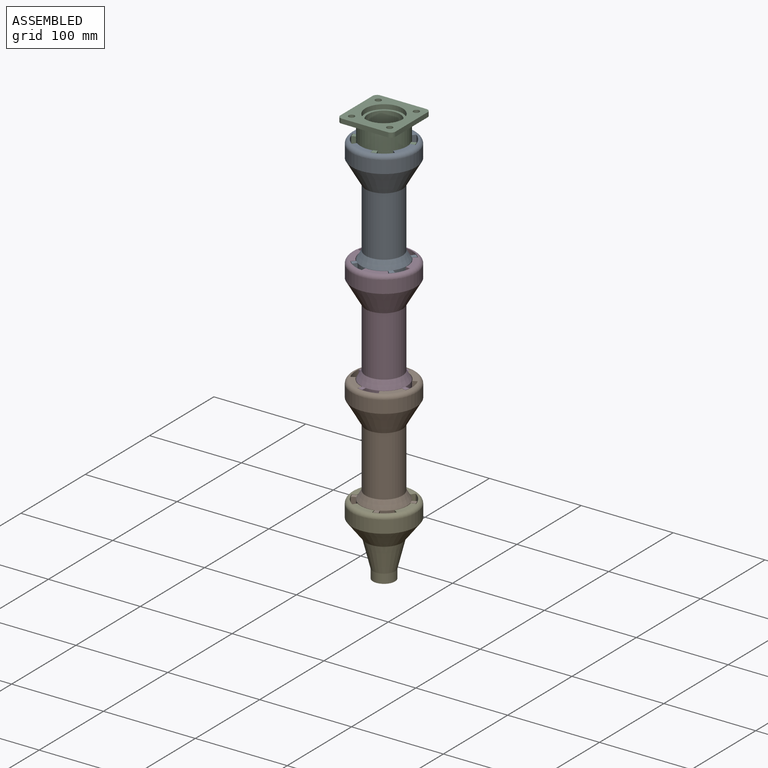
[diagram: assembled view]
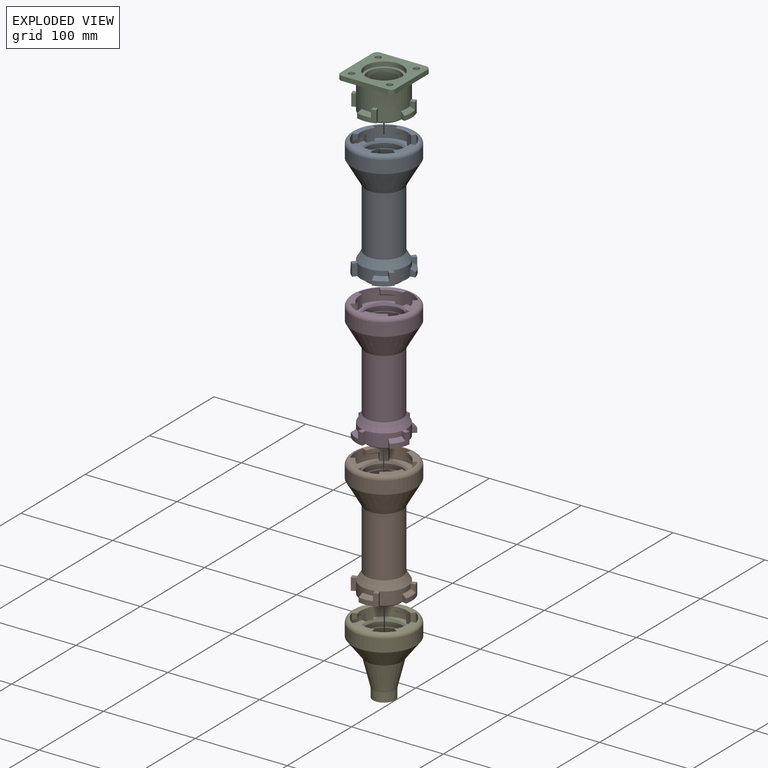
[diagram: exploded view]
GUIDED TOUR — MATED ASSEMBLY WITH SUBASSEMBLIES (Onshape document 5f03aaca9e69282ad3aea920, AutoMate assembly 5f03aaca9e69282ad3aea920_49f700d59b72830fd6bc51a1_0558d55363b534b056cfceb4_default)

This assembly has 13 component occurrences arranged in 5 top-level units: 0 individual components plus 5 subassemblies (S0, S1, S2, S3, S4). The tour has two levels: first the top level, where each subassembly is treated as one rigid unit; then each subassembly is toured internally in its own section (nesting deeper than one subassembly level is flattened into its subassembly's section).

Components are labeled P0..P12 across the whole record; subassembly units are labeled S0..S4. A mate is a constraint between two units; its type names the relative motion it leaves free:
  FASTENED — locks the two components together rigidly (no relative motion),
  REVOLUTE — leaves rotation about the listed axis free (a hinge).
Axis/direction vectors are unit vectors and 'through' points are millimeter coordinates, both in the assembly's world frame.

TOP-LEVEL MATES (between units; each subassembly's internal mates are listed in its own section)
  1. REVOLUTE "Revolute 2": S3 <-> S0, axis (0.000, 0.000, 1.000) through (-103.67, -44.20, 37.76) mm
  2. REVOLUTE "Revolute 3": S1 <-> S3, axis (0.000, 0.000, 1.000) through (-103.67, -44.20, -80.24) mm
  3. REVOLUTE "Revolute 4": S4 <-> S1, axis (0.000, 0.000, 1.000) through (-103.67, -44.20, -198.24) mm
  4. REVOLUTE "Revolute 1": S0 <-> S2, axis (0.000, 0.000, 1.000) through (-103.67, -44.20, 155.76) mm

TOP-LEVEL ASSEMBLY ORDER
  1. S0 — the base component [order heuristic]
  2. S2 [order heuristic]
  3. S3 [order heuristic]
  4. S1 [order heuristic]
  5. S4 [order heuristic]
Order-tag legend:
  [order heuristic] — this assembly is geometrically interlocked (no collision-free removal order exists), so components are listed in mate-graph order; insertion feasibility is not verified.

Of the 13 component occurrences, 13 carry the full construction recipe — the FeatureScript program that regenerates the part's solid from scratch; the rest are supplied as boundary geometry only. Each toured unit is shown spotlighted twice — assembled, then exploded with a leader line back to its socket (green = recipe-attached component, orange = geometry-only, blue = subassembly unit; the rest desaturated gray).
NOTE — document 2 of 3 of this assembly tour. The two overview renders and the header above are repeated from document 1; the component sections below continue where the previous document stopped.
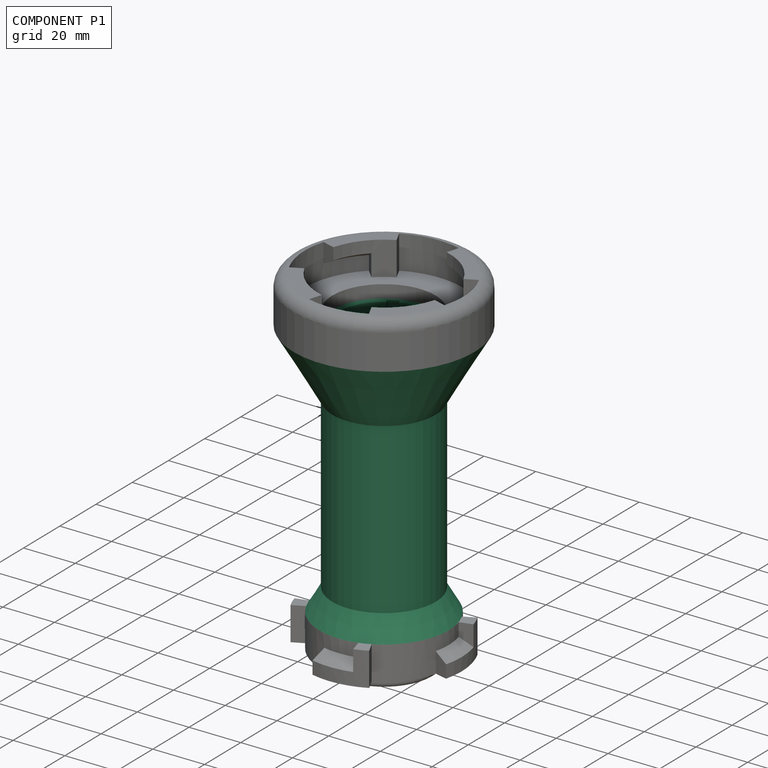
[diagram: component P1 — assembled]
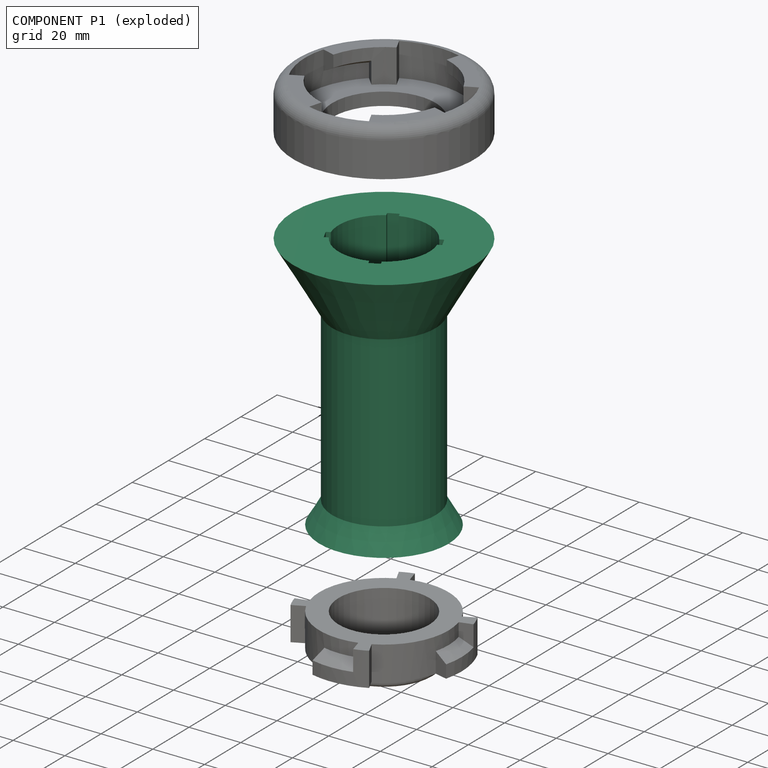
[diagram: component P1 — exploded]
COMPONENT P1 — recipe-attached (CADFS 00920901, mesh-verified: the recipe's output STEP matches this component's geometry to below the mesh-comparison resolution (tessellation chordal tolerance ~0.211 mm)).
Held by: FASTENED mate "Fastened 2" to P3; FASTENED mate "Fastened 1" to P4; FASTENED mate "Fastened 1" to P4; FASTENED mate "Fastened 2" to P3.
Construction recipe (FeatureScript — the CAD program that rebuilds this solid; sketch coordinates are in the units given by the * unit suffixes, e.g. mm):

FeatureScript 1511;
import(path : "onshape/std/geometry.fs", version : "1511.0");
import(path : "onshape/std/common.fs", version : "1511.0");
const mm = millimeter;
const VERTEX = EntityType.VERTEX;
const EDGE = EntityType.EDGE;
const FACE = EntityType.FACE;
const BODY = EntityType.BODY;
function v(x, y){return vector(x, y);}
function OD(order){return orderDisambiguation(order);}
function OSD(set){return originalSetDisambiguation(set);}
function TD(topology){return topologyDisambiguation(topology);}
function TDD(query){return trueDependencyDisambiguation(query);}
function sQuery(a, b, c) {return sketchEntityQuery(a, b, c);}

annotation { "Feature Type Name" : "Feature", "Feature Type Description" : "" }
export const myFeature = defineFeature(function(context is Context, id is Id, definition is map)
    precondition{}
    {
        {
            var Q0;
            Q0=qCreatedBy(makeId("Top.planeOp"),FACE);
            var sketch = newSketch(context, id + "F0", { "sketchPlane" : qUnion([Q0])});
            skCircle(sketch, "E0", {"center": v(0, 0) * mm, "radius": 20 * mm});
            skArc(sketch, "E1", {"start": v(17.39, 2) * mm, "mid": v(12.37, 12.37) * mm, "end": v(2, 17.39) * mm});
            skLineSegment(sketch, "E2.bottom", {"start": v(-19, 2) * mm, "end": v(-17.39, 2) * mm});
            skLineSegment(sketch, "E2.top", {"start": v(-19, -2) * mm, "end": v(-17.39, -2) * mm});
            skLineSegment(sketch, "E2.left", {"start": v(-19, 2) * mm, "end": v(-19, -2) * mm});
            skLineSegment(sketch, "E2.right", {"start": v(19, 2) * mm, "end": v(19, -2) * mm});
            skLineSegment(sketch, "E3", {"start": v(-27.64, 0) * mm, "end": v(39.71, 0) * mm, "construction": true});
            skLineSegment(sketch, "E4", {"start": v(0, -24.7) * mm, "end": v(0, 27.29) * mm, "construction": true});
            skArc(sketch, "E5.trimOffspring", {"start": v(-17.39, -2) * mm, "mid": v(-12.37, -12.37) * mm, "end": v(-2, -17.39) * mm});
            skLineSegment(sketch, "E6.trimOffspring", {"start": v(17.39, 2) * mm, "end": v(19, 2) * mm});
            skLineSegment(sketch, "E7.trimOffspring", {"start": v(17.39, -2) * mm, "end": v(19, -2) * mm});
            skLineSegment(sketch, "E8", {"start": v(-18.8, -18.8) * mm, "end": v(0, 0) * mm, "construction": true});
            skLineSegment(sketch, "E9", {"start": v(0, 0) * mm, "end": v(14.73, -14.73) * mm, "construction": true});
            skLineSegment(sketch, "E10.MirrorCS", {"start": v(2, -19) * mm, "end": v(2, -17.39) * mm});
            skLineSegment(sketch, "E11.MirrorCS", {"start": v(2, -19) * mm, "end": v(-2, -19) * mm});
            skLineSegment(sketch, "E12.MirrorCS", {"start": v(-2, -19) * mm, "end": v(-2, -17.39) * mm});
            skLineSegment(sketch, "E13.MirrorCS", {"start": v(-2, 17.39) * mm, "end": v(-2, 19) * mm});
            skLineSegment(sketch, "E14.MirrorCS", {"start": v(2, 17.39) * mm, "end": v(2, 19) * mm});
            skLineSegment(sketch, "E15.MirrorCS", {"start": v(2, 19) * mm, "end": v(-2, 19) * mm});
            skArc(sketch, "E16.trimOffspring", {"start": v(-2, 17.39) * mm, "mid": v(-12.37, 12.37) * mm, "end": v(-17.39, 2) * mm});
            skArc(sketch, "E17.trimOffspring", {"start": v(2, -17.39) * mm, "mid": v(12.37, -12.37) * mm, "end": v(17.39, -2) * mm});
            skSolve(sketch);
        }
        {
            var Q0;
            Q0 = qSketchRegion(id + "F0", true);
            extrude(context, id + "F1", {"entities" : qUnion([Q0]), "depth" : 100 * mm, "offsetDistance" : 25 * mm});
        }
        {
            var Q0;
            Q0=qCreatedBy(makeId("Front.planeOp"),FACE);
            var sketch = newSketch(context, id + "F2", { "sketchPlane" : qUnion([Q0])});
            skLineSegment(sketch, "E18", {"start": v(20, 100) * mm, "end": v(20, 74.02) * mm});
            skLineSegment(sketch, "E19", {"start": v(20, 74.02) * mm, "end": v(35, 100) * mm});
            skLineSegment(sketch, "E20", {"start": v(35, 100) * mm, "end": v(20, 100) * mm});
            skLineSegment(sketch, "E21", {"start": v(0, 0) * mm, "end": v(0, 110.34) * mm, "construction": true});
            skLineSegment(sketch, "E22", {"start": v(20, 8.66) * mm, "end": v(20, 0) * mm});
            skLineSegment(sketch, "E23", {"start": v(20, 0) * mm, "end": v(25, 0) * mm});
            skLineSegment(sketch, "E24", {"start": v(25, 0) * mm, "end": v(20, 8.66) * mm});
            skSolve(sketch);
        }
        {
            var Q0;
            Q0=qCreatedBy(makeId("Front.planeOp"),FACE);
            var sketch = newSketch(context, id + "F3", { "sketchPlane" : qUnion([Q0])});
            skLineSegment(sketch, "E25", {"start": v(0, 120.6) * mm, "end": v(0, 0) * mm});
            skSolve(sketch);
        }
        {
            var Q0;
            Q0=makeQuery(id+"F2.imprint","IMPRINT",FACE,{"disambiguationData":[TD([[makeQuery(id+"F2.imprint","IMPRINT",EDGE,{"derivedFrom":sQuery(id+"F2.wireOp",EDGE,"E18")}),1.0]])]});
            var Q1;
            Q1=makeQuery(id+"F2.imprint","IMPRINT",FACE,{"disambiguationData":[TD([[makeQuery(id+"F2.imprint","IMPRINT",EDGE,{"derivedFrom":sQuery(id+"F2.wireOp",EDGE,"E22")}),1.0]])]});
            var Q2;
            Q2=sQuery(id+"F3.wireOp",EDGE,"E25");
            revolve(context, id + "F4", {"operationType" : NewBodyOperationType.ADD, "surfaceOperationType" : NewSurfaceOperationType.NEW, "entities" : qUnion([Q0, Q1]), "axis" : qUnion([Q2]), "revolveType" : RevolveType.FULL});
        }
    });
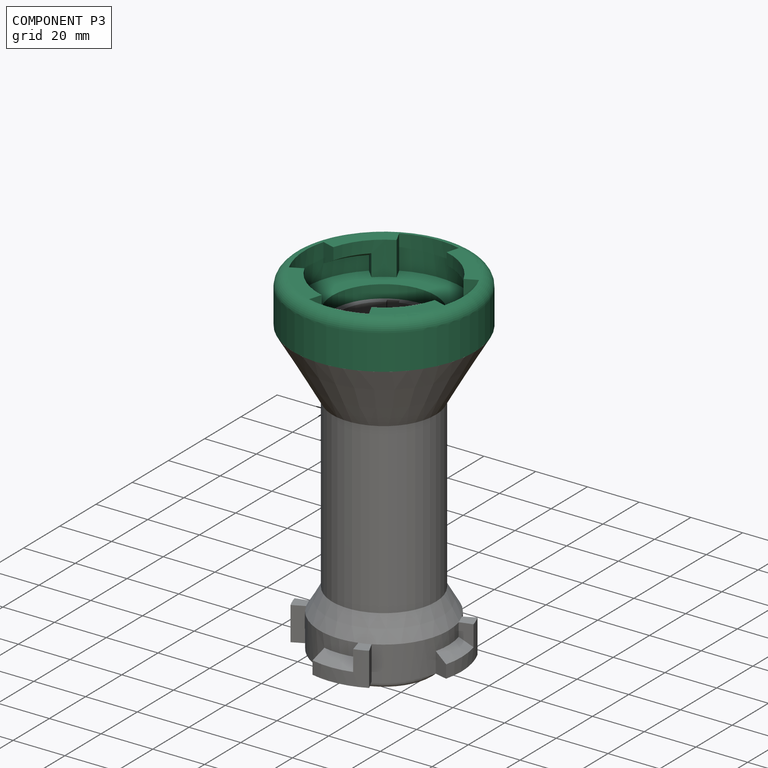
[diagram: component P3 — assembled]
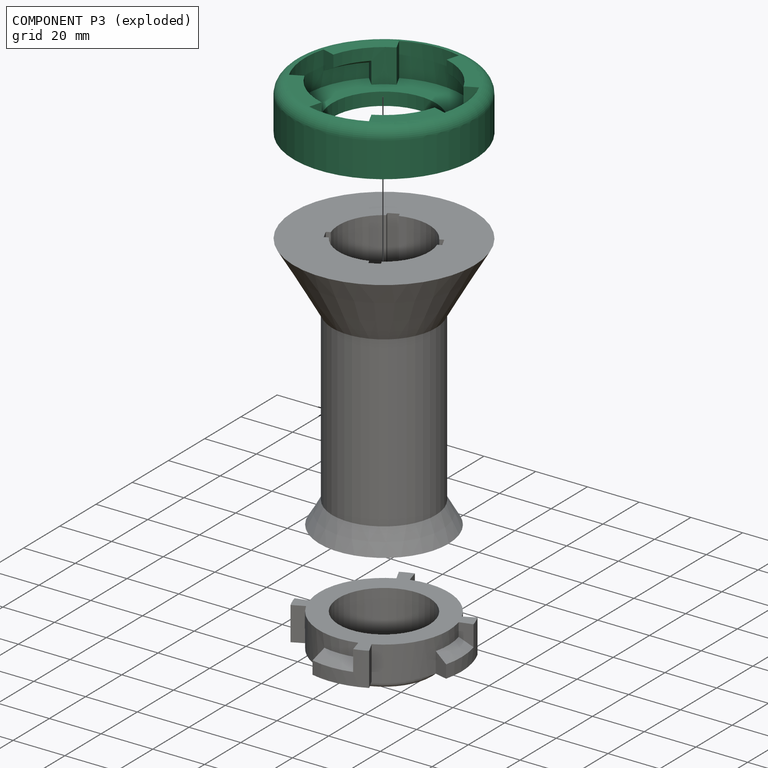
[diagram: component P3 — exploded]
COMPONENT P3 — recipe-attached (CADFS 00920902, mesh-verified: the recipe's output STEP matches this component's geometry to below the mesh-comparison resolution (tessellation chordal tolerance ~0.151 mm)).
Held by: FASTENED mate "Fastened 2" to P1; FASTENED mate "Fastened 2" to P1.
Construction recipe (FeatureScript — the CAD program that rebuilds this solid; sketch coordinates are in the units given by the * unit suffixes, e.g. mm):

FeatureScript 1511;
import(path : "onshape/std/geometry.fs", version : "1511.0");
import(path : "onshape/std/common.fs", version : "1511.0");
const mm = millimeter;
const VERTEX = EntityType.VERTEX;
const EDGE = EntityType.EDGE;
const FACE = EntityType.FACE;
const BODY = EntityType.BODY;
function v(x, y){return vector(x, y);}
function OD(order){return orderDisambiguation(order);}
function OSD(set){return originalSetDisambiguation(set);}
function TD(topology){return topologyDisambiguation(topology);}
function TDD(query){return trueDependencyDisambiguation(query);}
function sQuery(a, b, c) {return sketchEntityQuery(a, b, c);}

annotation { "Feature Type Name" : "Feature", "Feature Type Description" : "" }
export const myFeature = defineFeature(function(context is Context, id is Id, definition is map)
    precondition{}
    {
        {
            var Q0;
            Q0=qCreatedBy(makeId("Front.planeOp"),FACE);
            var sketch = newSketch(context, id + "F0", { "sketchPlane" : qUnion([Q0])});
            skLineSegment(sketch, "E0", {"start": v(17.5, 0) * mm, "end": v(17.5, 2) * mm});
            skLineSegment(sketch, "E1", {"start": v(17.5, 2) * mm, "end": v(20, 2) * mm});
            skLineSegment(sketch, "E2", {"start": v(20, 2) * mm, "end": v(20, 7) * mm});
            skLineSegment(sketch, "E3", {"start": v(20, 7) * mm, "end": v(30.5, 7) * mm});
            skLineSegment(sketch, "E4", {"start": v(30.5, 7) * mm, "end": v(30.5, 12.5) * mm});
            skLineSegment(sketch, "E5", {"start": v(30.5, 12.5) * mm, "end": v(25.5, 15.39) * mm});
            skLineSegment(sketch, "E6", {"start": v(25.5, 15.39) * mm, "end": v(25.5, 20) * mm});
            skLineSegment(sketch, "E7", {"start": v(25.5, 20) * mm, "end": v(35, 20) * mm});
            skLineSegment(sketch, "E8", {"start": v(35, 20) * mm, "end": v(35, 0) * mm});
            skLineSegment(sketch, "E9", {"start": v(35, 0) * mm, "end": v(17.5, 0) * mm});
            skSolve(sketch);
        }
        {
            var Q0;
            Q0=qCreatedBy(makeId("Front.planeOp"),FACE);
            var sketch = newSketch(context, id + "F1", { "sketchPlane" : qUnion([Q0])});
            skLineSegment(sketch, "E10", {"start": v(0, 47.14) * mm, "end": v(0, -19.48) * mm});
            skSolve(sketch);
        }
        {
            var Q0;
            Q0=makeQuery(id+"F0.imprint","IMPRINT",FACE,{"disambiguationData":[TD([[makeQuery(id+"F0.imprint","IMPRINT",EDGE,{"derivedFrom":sQuery(id+"F0.wireOp",EDGE,"E0")}),-1.0]])]});
            var Q1;
            Q1=sQuery(id+"F1.wireOp",EDGE,"E10");
            revolve(context, id + "F2", {"surfaceOperationType" : NewSurfaceOperationType.NEW, "entities" : qUnion([Q0]), "axis" : qUnion([Q1]), "revolveType" : RevolveType.FULL});
        }
        {
            var Q0;
            Q0=qCreatedBy(makeId("Top.planeOp"),FACE);
            var sketch = newSketch(context, id + "F3", { "sketchPlane" : qUnion([Q0])});
            skLineSegment(sketch, "E11", {"start": v(25.5, 0) * mm, "end": v(35, 0) * mm});
            skLineSegment(sketch, "E12", {"start": v(24.25, 7.88) * mm, "end": v(33.29, 10.82) * mm});
            skArc(sketch, "E13", {"start": v(25.5, 0) * mm, "mid": v(25.19, 3.99) * mm, "end": v(24.25, 7.88) * mm});
            skArc(sketch, "E14", {"start": v(35, 0) * mm, "mid": v(34.57, 5.48) * mm, "end": v(33.29, 10.82) * mm});
            skArc(sketch, "E15.1.0", {"start": v(0, 35) * mm, "mid": v(-5.48, 34.57) * mm, "end": v(-10.82, 33.29) * mm});
            skArc(sketch, "E15.1.1", {"start": v(0, 25.5) * mm, "mid": v(-3.99, 25.19) * mm, "end": v(-7.88, 24.25) * mm});
            skLineSegment(sketch, "E15.1.2", {"start": v(-7.88, 24.25) * mm, "end": v(-10.82, 33.29) * mm});
            skLineSegment(sketch, "E15.1.3", {"start": v(0, 25.5) * mm, "end": v(0, 35) * mm});
            skArc(sketch, "E15.2.0", {"start": v(-35, 0) * mm, "mid": v(-34.57, -5.48) * mm, "end": v(-33.29, -10.82) * mm});
            skArc(sketch, "E15.2.1", {"start": v(-25.5, 0) * mm, "mid": v(-25.19, -3.99) * mm, "end": v(-24.25, -7.88) * mm});
            skLineSegment(sketch, "E15.2.2", {"start": v(-24.25, -7.88) * mm, "end": v(-33.29, -10.82) * mm});
            skLineSegment(sketch, "E15.2.3", {"start": v(-25.5, 0) * mm, "end": v(-35, 0) * mm});
            skArc(sketch, "E15.3.0", {"start": v(0, -35) * mm, "mid": v(5.48, -34.57) * mm, "end": v(10.82, -33.29) * mm});
            skArc(sketch, "E15.3.1", {"start": v(0, -25.5) * mm, "mid": v(3.99, -25.19) * mm, "end": v(7.88, -24.25) * mm});
            skLineSegment(sketch, "E15.3.2", {"start": v(7.88, -24.25) * mm, "end": v(10.82, -33.29) * mm});
            skLineSegment(sketch, "E15.3.3", {"start": v(0, -25.5) * mm, "end": v(0, -35) * mm});
            skSolve(sketch);
        }
        {
            var Q0;
            Q0 = qSketchRegion(id + "F3", true);
            var Q1;
            Q1=makeQuery(id+"F2.opRevolve","SWEPT_FACE",FACE,{"disambiguationData":[OSD([sQuery(id+"F0.wireOp",EDGE,"E7")])]});
            extrude(context, id + "F4", {"entities" : qUnion([Q0]), "operationType" : NewBodyOperationType.ADD, "endBound" : BoundingType.UP_TO_SURFACE, "depth" : 25 * mm, "endBoundEntityFace" : qUnion([Q1]), "offsetDistance" : 25 * mm});
        }
        {
            var Q0;
            Q0=qCreatedBy(makeId("Top.planeOp"),FACE);
            var sketch = newSketch(context, id + "F5", { "sketchPlane" : qUnion([Q0])});
            skLineSegment(sketch, "E16", {"start": v(0, 25.5) * mm, "end": v(0, 30.5) * mm});
            skLineSegment(sketch, "E17", {"start": v(17.06, 18.95) * mm, "end": v(20.4, 22.67) * mm});
            skArc(sketch, "E18", {"start": v(17.06, 18.95) * mm, "mid": v(9.14, 23.8) * mm, "end": v(0, 25.5) * mm});
            skArc(sketch, "E19", {"start": v(20.4, 22.67) * mm, "mid": v(10.93, 28.47) * mm, "end": v(0, 30.5) * mm});
            skArc(sketch, "E20.1.0", {"start": v(-18.95, 17.06) * mm, "mid": v(-23.8, 9.14) * mm, "end": v(-25.5, 0) * mm});
            skArc(sketch, "E20.1.1", {"start": v(-22.67, 20.4) * mm, "mid": v(-28.47, 10.93) * mm, "end": v(-30.5, 0) * mm});
            skLineSegment(sketch, "E20.1.2", {"start": v(-18.95, 17.06) * mm, "end": v(-22.67, 20.4) * mm});
            skLineSegment(sketch, "E20.1.3", {"start": v(-25.5, 0) * mm, "end": v(-30.5, 0) * mm});
            skArc(sketch, "E20.2.0", {"start": v(-17.06, -18.95) * mm, "mid": v(-9.14, -23.8) * mm, "end": v(0, -25.5) * mm});
            skArc(sketch, "E20.2.1", {"start": v(-20.4, -22.67) * mm, "mid": v(-10.93, -28.47) * mm, "end": v(0, -30.5) * mm});
            skLineSegment(sketch, "E20.2.2", {"start": v(-17.06, -18.95) * mm, "end": v(-20.4, -22.67) * mm});
            skLineSegment(sketch, "E20.2.3", {"start": v(0, -25.5) * mm, "end": v(0, -30.5) * mm});
            skArc(sketch, "E20.3.0", {"start": v(18.95, -17.06) * mm, "mid": v(23.8, -9.14) * mm, "end": v(25.5, 0) * mm});
            skArc(sketch, "E20.3.1", {"start": v(22.67, -20.4) * mm, "mid": v(28.47, -10.93) * mm, "end": v(30.5, 0) * mm});
            skLineSegment(sketch, "E20.3.2", {"start": v(18.95, -17.06) * mm, "end": v(22.67, -20.4) * mm});
            skLineSegment(sketch, "E20.3.3", {"start": v(25.5, 0) * mm, "end": v(30.5, 0) * mm});
            skSolve(sketch);
        }
        {
            var Q0;
            Q0 = qSketchRegion(id + "F5", true);
            var Q1;
            Q1=makeQuery(id+"F2.opRevolve","SWEPT_FACE",FACE,{"disambiguationData":[OSD([sQuery(id+"F0.wireOp",EDGE,"E7")])]});
            var Q2;
            Q2=makeQuery(id+"F2.opRevolve","SWEPT_FACE",FACE,{"disambiguationData":[OSD([sQuery(id+"F0.wireOp",EDGE,"E3")])]});
            extrude(context, id + "F6", {"entities" : qUnion([Q0]), "operationType" : NewBodyOperationType.REMOVE, "endBound" : BoundingType.UP_TO_SURFACE, "depth" : 25 * mm, "endBoundEntityFace" : qUnion([Q1]), "offsetDistance" : 25 * mm, "hasSecondDirection" : true, "secondDirectionBound" : SecondDirectionBoundingType.UP_TO_SURFACE, "secondDirectionOppositeDirection" : false, "secondDirectionDepth" : 25 * mm, "secondDirectionBoundEntityFace" : qUnion([Q2])});
        }
        {
            var Q0;
            Q0=makeQuery(id+"F2.opRevolve","SWEPT_FACE",FACE,{"disambiguationData":[OSD([sQuery(id+"F0.wireOp",EDGE,"E9")])]});
            var sketch = newSketch(context, id + "F7", { "sketchPlane" : qUnion([Q0])});
            skCircle(sketch, "E21", {"center": v(0, 0) * mm, "radius": 35 * mm});
            skSolve(sketch);
        }
        {
            var Q0;
            Q0 = qSketchRegion(id + "F7", true);
            extrude(context, id + "F8", {"entities" : qUnion([Q0]), "operationType" : NewBodyOperationType.REMOVE, "oppositeDirection" : true, "depth" : 2 * mm, "offsetDistance" : 25 * mm});
        }
        {
            var Q0;
            Q0=makeQuery(id+"F2.opRevolve","SWEPT_EDGE",EDGE,{"disambiguationData":[OSD([sQuery(id+"F0.wireOp",EDGE,"E7"),sQuery(id+"F0.wireOp",EDGE,"E8")])]});
            fillet(context, id + "F9", {"entities" : qUnion([Q0]), "radius" : 4.5 * mm, "tangentPropagation" : true, "allowEdgeOverflow" : false});
        }
    });
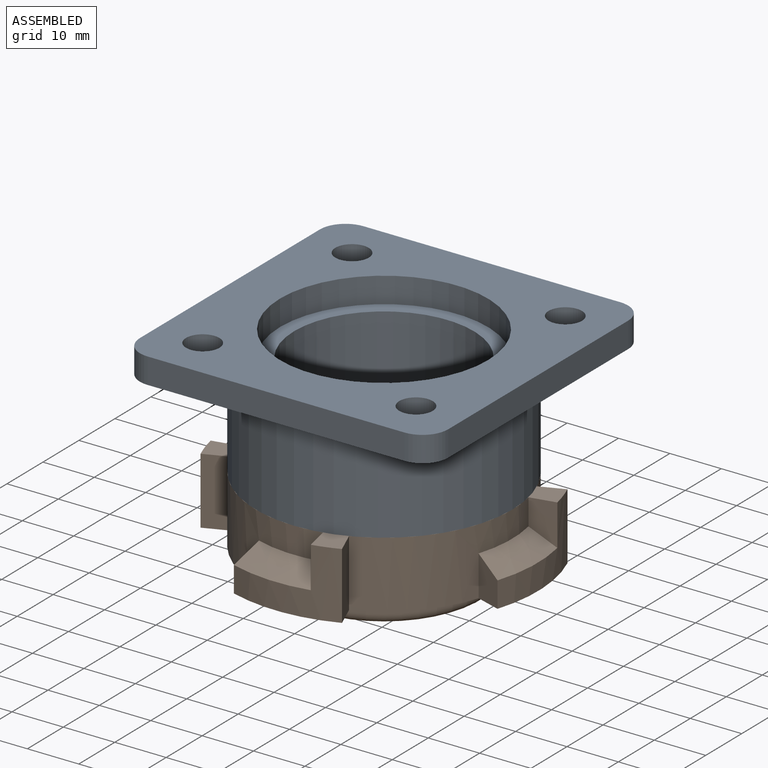
[diagram: subassembly S2 — assembled view]
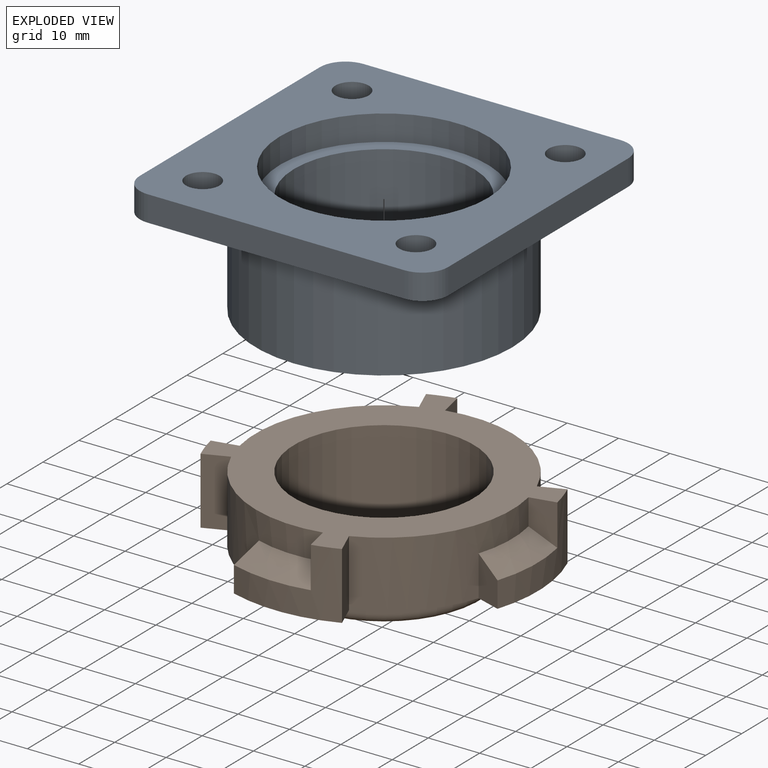
[diagram: subassembly S2 — exploded view]
SUBASSEMBLY S2 TOUR — 2 components, shown here in isolation at its own camera.

INTERNAL MATES
  1. REVOLUTE "Revolute 1": P2 <-> P10, axis (0.000, 0.000, -1.000) through (-103.67, -44.20, 168.76) mm
  2. REVOLUTE "Revolute 1": P2 <-> P10, axis (0.000, 0.000, -1.000) through (-103.67, -44.20, 168.76) mm

ASSEMBLY ORDER (within the subassembly)
  1. P10 — the base component [order verified]
  2. P2 [order verified]
Order-tag legend:
  [order verified] — this step's position reverses a verified removal order: the component was checked to insert without passing through the ones already placed.
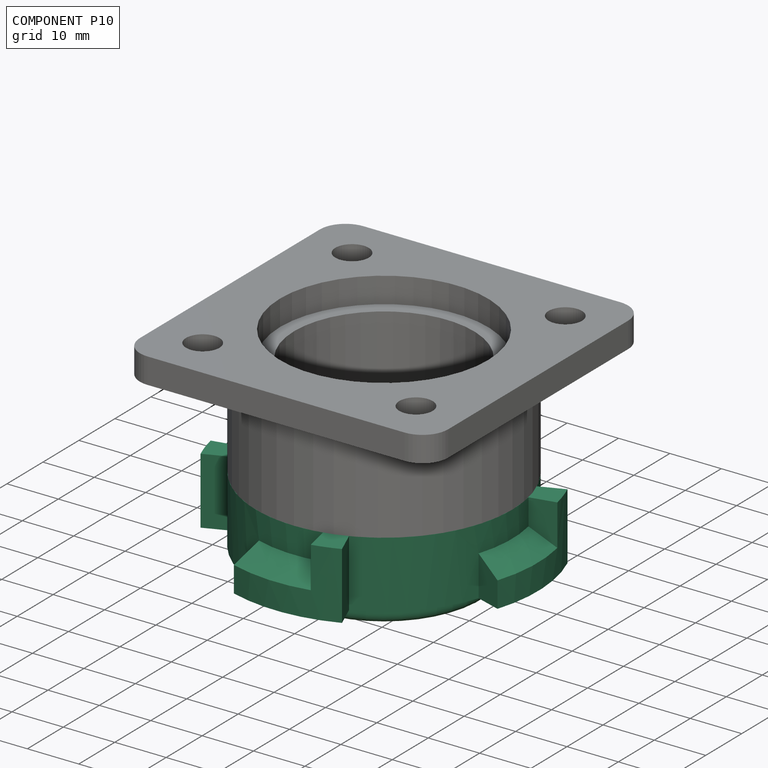
[diagram: component P10 — assembled]
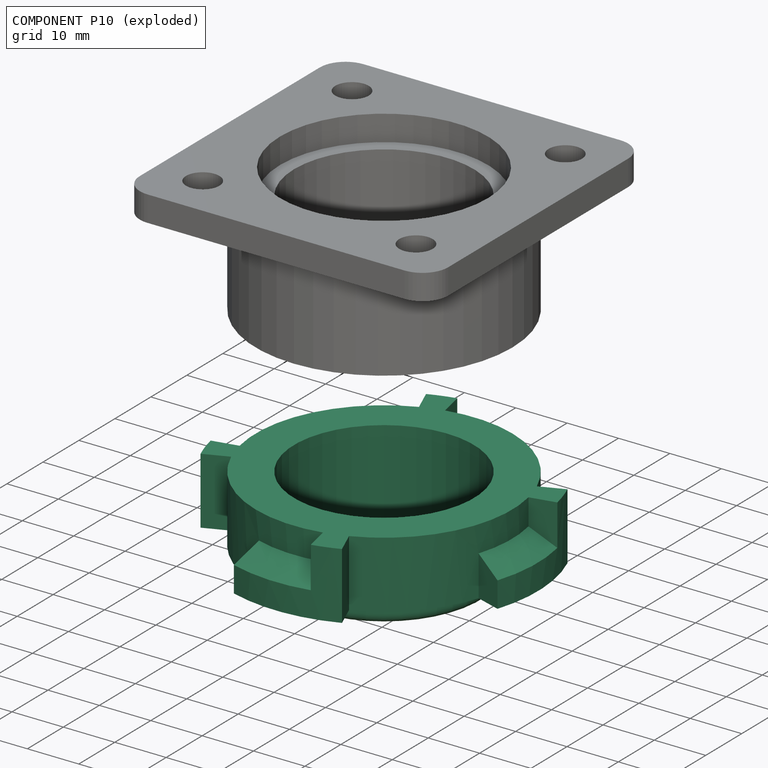
[diagram: component P10 — exploded]
COMPONENT P10 — recipe-attached (CADFS 00920899, mesh-verified: the recipe's output STEP matches this component's geometry to below the mesh-comparison resolution (tessellation chordal tolerance ~0.13 mm)).
Held by: REVOLUTE mate "Revolute 1" to P2; REVOLUTE mate "Revolute 1" to P2.
Construction recipe (FeatureScript — the CAD program that rebuilds this solid; sketch coordinates are in the units given by the * unit suffixes, e.g. mm):

FeatureScript 1511;
import(path : "onshape/std/geometry.fs", version : "1511.0");
import(path : "onshape/std/common.fs", version : "1511.0");
const mm = millimeter;
const VERTEX = EntityType.VERTEX;
const EDGE = EntityType.EDGE;
const FACE = EntityType.FACE;
const BODY = EntityType.BODY;
function v(x, y){return vector(x, y);}
function OD(order){return orderDisambiguation(order);}
function OSD(set){return originalSetDisambiguation(set);}
function TD(topology){return topologyDisambiguation(topology);}
function TDD(query){return trueDependencyDisambiguation(query);}
function sQuery(a, b, c) {return sketchEntityQuery(a, b, c);}

annotation { "Feature Type Name" : "Feature", "Feature Type Description" : "" }
export const myFeature = defineFeature(function(context is Context, id is Id, definition is map)
    precondition{}
    {
        {
            var Q0;
            Q0=qCreatedBy(makeId("Front.planeOp"),FACE);
            var sketch = newSketch(context, id + "F0", { "sketchPlane" : qUnion([Q0])});
            skLineSegment(sketch, "E0", {"start": v(17.5, 0) * mm, "end": v(19.5, 0) * mm});
            skLineSegment(sketch, "E1", {"start": v(19.5, 0) * mm, "end": v(19.5, 5) * mm});
            skLineSegment(sketch, "E2", {"start": v(19.5, 5) * mm, "end": v(30, 5) * mm});
            skLineSegment(sketch, "E3", {"start": v(30, 5) * mm, "end": v(30, 10) * mm});
            skLineSegment(sketch, "E4", {"start": v(30, 10) * mm, "end": v(25, 12.89) * mm});
            skLineSegment(sketch, "E5", {"start": v(25, 12.89) * mm, "end": v(25, 18) * mm});
            skLineSegment(sketch, "E6", {"start": v(25, 18) * mm, "end": v(17.5, 18) * mm});
            skLineSegment(sketch, "E7", {"start": v(17.5, 18) * mm, "end": v(17.5, 0) * mm});
            skSolve(sketch);
        }
        {
            var Q0;
            Q0=qCreatedBy(makeId("Front.planeOp"),FACE);
            var sketch = newSketch(context, id + "F1", { "sketchPlane" : qUnion([Q0])});
            skLineSegment(sketch, "E8", {"start": v(0, 0) * mm, "end": v(0, 36.68) * mm});
            skSolve(sketch);
        }
        {
            var Q0;
            Q0=makeQuery(id+"F0.imprint","IMPRINT",FACE,{"disambiguationData":[TD([[makeQuery(id+"F0.imprint","IMPRINT",EDGE,{"derivedFrom":sQuery(id+"F0.wireOp",EDGE,"E0")}),1.0]])]});
            var Q1;
            Q1=sQuery(id+"F1.wireOp",EDGE,"E8");
            revolve(context, id + "F2", {"surfaceOperationType" : NewSurfaceOperationType.NEW, "entities" : qUnion([Q0]), "axis" : qUnion([Q1]), "revolveType" : RevolveType.FULL});
        }
        {
            var Q0;
            Q0=qCreatedBy(makeId("Top.planeOp"),FACE);
            var sketch = newSketch(context, id + "F3", { "sketchPlane" : qUnion([Q0])});
            skArc(sketch, "E9", {"start": v(-4.34, -24.62) * mm, "mid": v(-2.18, -24.9) * mm, "end": v(0, -25) * mm});
            skArc(sketch, "E10", {"start": v(-5.2, -29.54) * mm, "mid": v(-2.61, -29.89) * mm, "end": v(0, -30) * mm});
            skLineSegment(sketch, "E11", {"start": v(0, -25) * mm, "end": v(0, -30) * mm});
            skLineSegment(sketch, "E12", {"start": v(-4.34, -24.62) * mm, "end": v(-5.2, -29.54) * mm});
            skArc(sketch, "E13.1.0", {"start": v(29.54, -5.2) * mm, "mid": v(29.89, -2.61) * mm, "end": v(30, 0) * mm});
            skLineSegment(sketch, "E13.1.1", {"start": v(25, 0) * mm, "end": v(30, 0) * mm});
            skLineSegment(sketch, "E13.1.2", {"start": v(24.62, -4.34) * mm, "end": v(29.54, -5.2) * mm});
            skArc(sketch, "E13.1.3", {"start": v(24.62, -4.34) * mm, "mid": v(24.9, -2.18) * mm, "end": v(25, 0) * mm});
            skArc(sketch, "E13.2.0", {"start": v(5.2, 29.54) * mm, "mid": v(2.61, 29.89) * mm, "end": v(0, 30) * mm});
            skLineSegment(sketch, "E13.2.1", {"start": v(0, 25) * mm, "end": v(0, 30) * mm});
            skLineSegment(sketch, "E13.2.2", {"start": v(4.34, 24.62) * mm, "end": v(5.2, 29.54) * mm});
            skArc(sketch, "E13.2.3", {"start": v(4.34, 24.62) * mm, "mid": v(2.18, 24.9) * mm, "end": v(0, 25) * mm});
            skArc(sketch, "E13.3.0", {"start": v(-29.54, 5.2) * mm, "mid": v(-29.89, 2.61) * mm, "end": v(-30, 0) * mm});
            skLineSegment(sketch, "E13.3.1", {"start": v(-25, 0) * mm, "end": v(-30, 0) * mm});
            skLineSegment(sketch, "E13.3.2", {"start": v(-24.62, 4.34) * mm, "end": v(-29.54, 5.2) * mm});
            skArc(sketch, "E13.3.3", {"start": v(-24.62, 4.34) * mm, "mid": v(-24.9, 2.18) * mm, "end": v(-25, 0) * mm});
            skSolve(sketch);
        }
        {
            var Q0;
            Q0 = qSketchRegion(id + "F3", true);
            var Q1;
            Q1=makeQuery(id+"F2.opRevolve","SWEPT_FACE",FACE,{"disambiguationData":[OSD([sQuery(id+"F0.wireOp",EDGE,"E6")])]});
            var Q2;
            Q2=makeQuery(id+"F2.opRevolve","SWEPT_FACE",FACE,{"disambiguationData":[OSD([sQuery(id+"F0.wireOp",EDGE,"E2")])]});
            extrude(context, id + "F4", {"entities" : qUnion([Q0]), "operationType" : NewBodyOperationType.ADD, "endBound" : BoundingType.UP_TO_SURFACE, "depth" : 25 * mm, "endBoundEntityFace" : qUnion([Q1]), "offsetDistance" : 25 * mm, "hasSecondDirection" : true, "secondDirectionBound" : SecondDirectionBoundingType.UP_TO_SURFACE, "secondDirectionOppositeDirection" : false, "secondDirectionDepth" : 25 * mm, "secondDirectionBoundEntityFace" : qUnion([Q2])});
        }
        {
            var Q0;
            Q0=qCreatedBy(makeId("Top.planeOp"),FACE);
            var sketch = newSketch(context, id + "F5", { "sketchPlane" : qUnion([Q0])});
            skArc(sketch, "E14", {"start": v(0, -30) * mm, "mid": v(12.68, -27.19) * mm, "end": v(22.98, -19.28) * mm});
            skArc(sketch, "E15", {"start": v(0, -25) * mm, "mid": v(10.57, -22.66) * mm, "end": v(19.15, -16.07) * mm});
            skLineSegment(sketch, "E16", {"start": v(0, -25) * mm, "end": v(0, -30) * mm});
            skLineSegment(sketch, "E17", {"start": v(19.15, -16.07) * mm, "end": v(22.98, -19.28) * mm});
            skLineSegment(sketch, "E18.1.0", {"start": v(16.07, 19.15) * mm, "end": v(19.28, 22.98) * mm});
            skArc(sketch, "E18.1.1", {"start": v(25, 0) * mm, "mid": v(22.66, 10.57) * mm, "end": v(16.07, 19.15) * mm});
            skLineSegment(sketch, "E18.1.2", {"start": v(25, 0) * mm, "end": v(30, 0) * mm});
            skArc(sketch, "E18.1.3", {"start": v(30, 0) * mm, "mid": v(27.19, 12.68) * mm, "end": v(19.28, 22.98) * mm});
            skLineSegment(sketch, "E18.2.0", {"start": v(-19.15, 16.07) * mm, "end": v(-22.98, 19.28) * mm});
            skArc(sketch, "E18.2.1", {"start": v(0, 25) * mm, "mid": v(-10.57, 22.66) * mm, "end": v(-19.15, 16.07) * mm});
            skLineSegment(sketch, "E18.2.2", {"start": v(0, 25) * mm, "end": v(0, 30) * mm});
            skArc(sketch, "E18.2.3", {"start": v(0, 30) * mm, "mid": v(-12.68, 27.19) * mm, "end": v(-22.98, 19.28) * mm});
            skLineSegment(sketch, "E18.3.0", {"start": v(-16.07, -19.15) * mm, "end": v(-19.28, -22.98) * mm});
            skArc(sketch, "E18.3.1", {"start": v(-25, 0) * mm, "mid": v(-22.66, -10.57) * mm, "end": v(-16.07, -19.15) * mm});
            skLineSegment(sketch, "E18.3.2", {"start": v(-25, 0) * mm, "end": v(-30, 0) * mm});
            skArc(sketch, "E18.3.3", {"start": v(-30, 0) * mm, "mid": v(-27.19, -12.68) * mm, "end": v(-19.28, -22.98) * mm});
            skSolve(sketch);
        }
        {
            var Q0;
            Q0 = qSketchRegion(id + "F5", true);
            var Q1;
            Q1=makeQuery(id+"F4.boolean.opBoolean","MERGE",FACE,{"derivedFrom":[makeQuery(id+"F2.opRevolve","SWEPT_FACE",FACE,{"disambiguationData":[OSD([sQuery(id+"F0.wireOp",EDGE,"E6")])]}),makeQuery(id+"F4.opExtrude","CAP_FACE",FACE,{"disambiguationData":[OSD([sQuery(id+"F3.wireOp",EDGE,"E9"),sQuery(id+"F3.wireOp",EDGE,"E10"),sQuery(id+"F3.wireOp",EDGE,"E11"),sQuery(id+"F3.wireOp",EDGE,"E12")])],"isStart":false}),makeQuery(id+"F4.opExtrude","CAP_FACE",FACE,{"disambiguationData":[OSD([sQuery(id+"F3.wireOp",EDGE,"E13.1.0"),sQuery(id+"F3.wireOp",EDGE,"E13.1.1"),sQuery(id+"F3.wireOp",EDGE,"E13.1.2"),sQuery(id+"F3.wireOp",EDGE,"E13.1.3")])],"isStart":false}),makeQuery(id+"F4.opExtrude","CAP_FACE",FACE,{"disambiguationData":[OSD([sQuery(id+"F3.wireOp",EDGE,"E13.2.0"),sQuery(id+"F3.wireOp",EDGE,"E13.2.1"),sQuery(id+"F3.wireOp",EDGE,"E13.2.2"),sQuery(id+"F3.wireOp",EDGE,"E13.2.3")])],"isStart":false}),makeQuery(id+"F4.opExtrude","CAP_FACE",FACE,{"disambiguationData":[OSD([sQuery(id+"F3.wireOp",EDGE,"E13.3.0"),sQuery(id+"F3.wireOp",EDGE,"E13.3.1"),sQuery(id+"F3.wireOp",EDGE,"E13.3.2"),sQuery(id+"F3.wireOp",EDGE,"E13.3.3")])],"isStart":false})]});
            var Q2;
            Q2=makeQuery(id+"F2.opRevolve","SWEPT_FACE",FACE,{"disambiguationData":[OSD([sQuery(id+"F0.wireOp",EDGE,"E2")])]});
            extrude(context, id + "F6", {"entities" : qUnion([Q0]), "operationType" : NewBodyOperationType.REMOVE, "endBound" : BoundingType.UP_TO_SURFACE, "depth" : 25 * mm, "endBoundEntityFace" : qUnion([Q1]), "offsetDistance" : 25 * mm, "hasSecondDirection" : true, "secondDirectionBound" : SecondDirectionBoundingType.UP_TO_SURFACE, "secondDirectionOppositeDirection" : false, "secondDirectionDepth" : 25 * mm, "secondDirectionBoundEntityFace" : qUnion([Q2])});
        }
        {
            var Q0;
            Q0=makeQuery(id+"F2.opRevolve","SWEPT_EDGE",EDGE,{"disambiguationData":[OSD([sQuery(id+"F0.wireOp",EDGE,"E0"),sQuery(id+"F0.wireOp",EDGE,"E1")])]});
            fillet(context, id + "F7", {"entities" : qUnion([Q0]), "radius" : 2 * mm, "tangentPropagation" : true, "allowEdgeOverflow" : false});
        }
    });
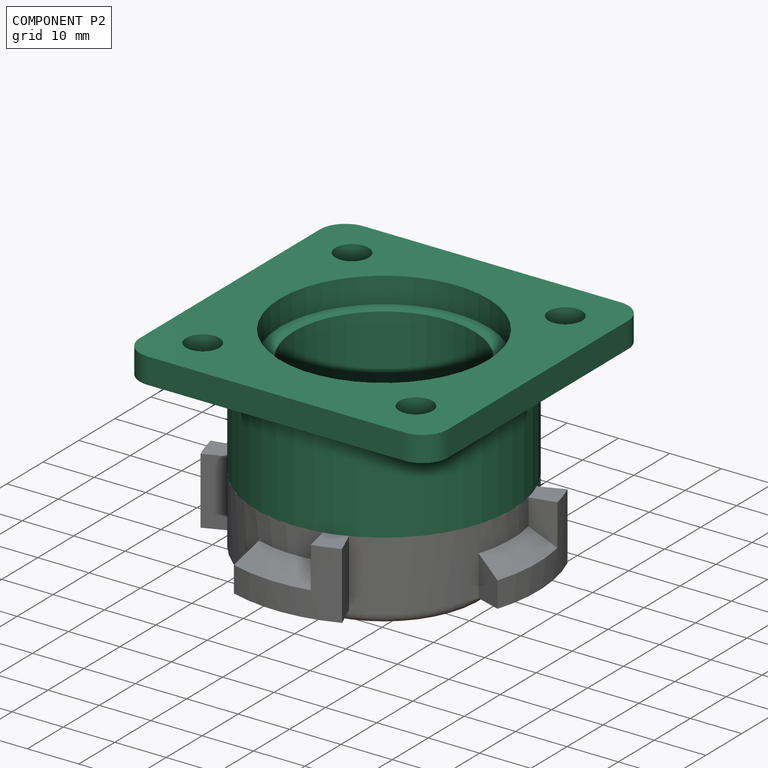
[diagram: component P2 — assembled]
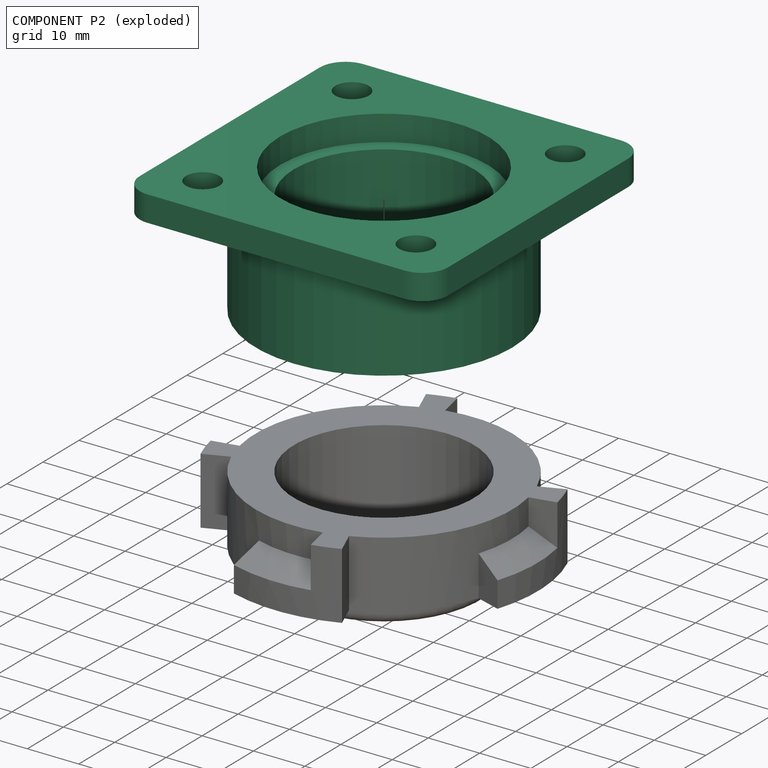
[diagram: component P2 — exploded]
COMPONENT P2 — recipe-attached (CADFS 00920900, mesh-verified: the recipe's output STEP matches this component's geometry to below the mesh-comparison resolution (tessellation chordal tolerance ~0.133 mm)).
Held by: REVOLUTE mate "Revolute 1" to P10; REVOLUTE mate "Revolute 1" to P10.
Construction recipe (FeatureScript — the CAD program that rebuilds this solid; sketch coordinates are in the units given by the * unit suffixes, e.g. mm):

FeatureScript 1511;
import(path : "onshape/std/geometry.fs", version : "1511.0");
import(path : "onshape/std/common.fs", version : "1511.0");
const mm = millimeter;
const VERTEX = EntityType.VERTEX;
const EDGE = EntityType.EDGE;
const FACE = EntityType.FACE;
const BODY = EntityType.BODY;
function v(x, y){return vector(x, y);}
function OD(order){return orderDisambiguation(order);}
function OSD(set){return originalSetDisambiguation(set);}
function TD(topology){return topologyDisambiguation(topology);}
function TDD(query){return trueDependencyDisambiguation(query);}
function sQuery(a, b, c) {return sketchEntityQuery(a, b, c);}

annotation { "Feature Type Name" : "Feature", "Feature Type Description" : "" }
export const myFeature = defineFeature(function(context is Context, id is Id, definition is map)
    precondition{}
    {
        {
            var Q0;
            Q0=qCreatedBy(makeId("Top.planeOp"),FACE);
            var sketch = newSketch(context, id + "F0", { "sketchPlane" : qUnion([Q0])});
            skLineSegment(sketch, "E0.bottom", {"start": v(-30, 30) * mm, "end": v(30, 30) * mm});
            skLineSegment(sketch, "E0.top", {"start": v(-30, -30) * mm, "end": v(30, -30) * mm});
            skLineSegment(sketch, "E0.left", {"start": v(-30, 30) * mm, "end": v(-30, -30) * mm});
            skLineSegment(sketch, "E0.right", {"start": v(30, 30) * mm, "end": v(30, -30) * mm});
            skCircle(sketch, "E1", {"center": v(-20.75, 20.75) * mm, "radius": 3.25 * mm});
            skLineSegment(sketch, "E2", {"start": v(0, 46.31) * mm, "end": v(0, -34.79) * mm, "construction": true});
            skLineSegment(sketch, "E3", {"start": v(-39.4, 0) * mm, "end": v(37, 0) * mm, "construction": true});
            skCircle(sketch, "E4.MirrorC", {"center": v(20.75, 20.75) * mm, "radius": 3.25 * mm});
            skCircle(sketch, "E5.MirrorC", {"center": v(-20.75, -20.75) * mm, "radius": 3.25 * mm});
            skCircle(sketch, "E6.MirrorC", {"center": v(20.75, -20.75) * mm, "radius": 3.25 * mm});
            skCircle(sketch, "E7", {"center": v(0, 0) * mm, "radius": 20.25 * mm});
            skSolve(sketch);
        }
        {
            var Q0;
            Q0 = qSketchRegion(id + "F0", true);
            extrude(context, id + "F1", {"entities" : qUnion([Q0]), "depth" : 5 * mm, "offsetDistance" : 25 * mm});
        }
        {
            var Q0;
            Q0=makeQuery(id+"F1.opExtrude","SWEPT_EDGE",EDGE,{"disambiguationData":[OSD([sQuery(id+"F0.wireOp",EDGE,"E0.top"),sQuery(id+"F0.wireOp",EDGE,"E0.left")])]});
            var Q1;
            Q1=makeQuery(id+"F1.opExtrude","SWEPT_EDGE",EDGE,{"disambiguationData":[OSD([sQuery(id+"F0.wireOp",EDGE,"E0.top"),sQuery(id+"F0.wireOp",EDGE,"E0.right")])]});
            var Q2;
            Q2=makeQuery(id+"F1.opExtrude","SWEPT_EDGE",EDGE,{"disambiguationData":[OSD([sQuery(id+"F0.wireOp",EDGE,"E0.bottom"),sQuery(id+"F0.wireOp",EDGE,"E0.right")])]});
            var Q3;
            Q3=makeQuery(id+"F1.opExtrude","SWEPT_EDGE",EDGE,{"disambiguationData":[OSD([sQuery(id+"F0.wireOp",EDGE,"E0.bottom"),sQuery(id+"F0.wireOp",EDGE,"E0.left")])]});
            fillet(context, id + "F2", {"entities" : qUnion([Q0, Q1, Q2, Q3]), "radius" : 5 * mm, "tangentPropagation" : true, "allowEdgeOverflow" : false});
        }
        {
            var Q0;
            Q0=makeQuery(id+"F1.opExtrude","CAP_FACE",FACE,{"disambiguationData":[OSD([sQuery(id+"F0.wireOp",EDGE,"E0.bottom"),sQuery(id+"F0.wireOp",EDGE,"E0.top"),sQuery(id+"F0.wireOp",EDGE,"E0.left"),sQuery(id+"F0.wireOp",EDGE,"E0.right"),sQuery(id+"F0.wireOp",EDGE,"E1"),sQuery(id+"F0.wireOp",EDGE,"E4.MirrorC"),sQuery(id+"F0.wireOp",EDGE,"E5.MirrorC"),sQuery(id+"F0.wireOp",EDGE,"E6.MirrorC"),sQuery(id+"F0.wireOp",EDGE,"E7")])],"isStart":false});
            var sketch = newSketch(context, id + "F3", { "sketchPlane" : qUnion([Q0])});
            skCircle(sketch, "E8", {"center": v(0, 0) * mm, "radius": 19.5 * mm});
            skSolve(sketch);
        }
        {
            var Q0;
            Q0 = qSketchRegion(id + "F3", true);
            extrude(context, id + "F4", {"entities" : qUnion([Q0]), "operationType" : NewBodyOperationType.REMOVE, "oppositeDirection" : true, "depth" : 5 * mm, "offsetDistance" : 25 * mm});
        }
        {
            var Q0;
            Q0=makeQuery(id+"F1.opExtrude","CAP_FACE",FACE,{"disambiguationData":[OSD([sQuery(id+"F0.wireOp",EDGE,"E0.bottom"),sQuery(id+"F0.wireOp",EDGE,"E0.top"),sQuery(id+"F0.wireOp",EDGE,"E0.left"),sQuery(id+"F0.wireOp",EDGE,"E0.right"),sQuery(id+"F0.wireOp",EDGE,"E1"),sQuery(id+"F0.wireOp",EDGE,"E4.MirrorC"),sQuery(id+"F0.wireOp",EDGE,"E5.MirrorC"),sQuery(id+"F0.wireOp",EDGE,"E6.MirrorC"),sQuery(id+"F0.wireOp",EDGE,"E7")])],"isStart":true});
            var sketch = newSketch(context, id + "F5", { "sketchPlane" : qUnion([Q0])});
            skCircle(sketch, "E9", {"center": v(0, 0) * mm, "radius": 17.5 * mm});
            skCircle(sketch, "E10", {"center": v(0, 0) * mm, "radius": 25 * mm});
            skSolve(sketch);
        }
        {
            var Q0;
            Q0 = qSketchRegion(id + "F5", true);
            extrude(context, id + "F6", {"entities" : qUnion([Q0]), "operationType" : NewBodyOperationType.ADD, "depth" : 20 * mm, "offsetDistance" : 25 * mm});
        }
    });
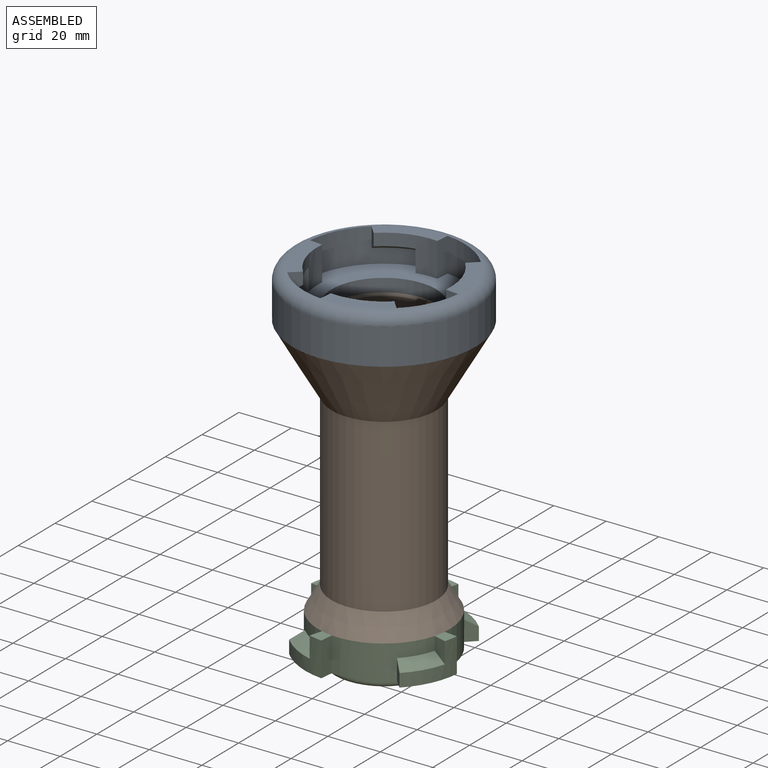
[diagram: subassembly S3 — assembled view]
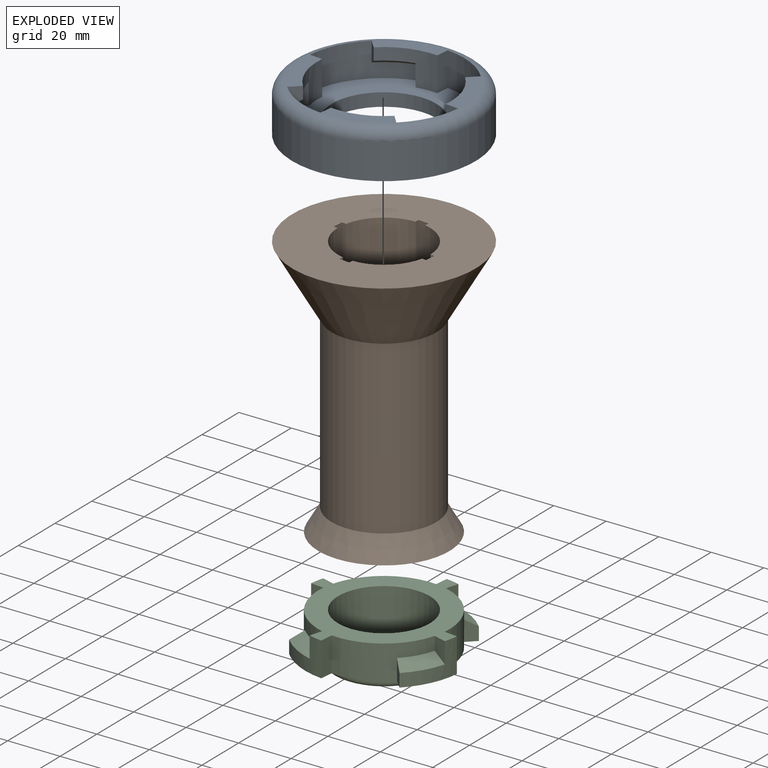
[diagram: subassembly S3 — exploded view]
SUBASSEMBLY S3 TOUR — 3 components, shown here in isolation at its own camera.

INTERNAL MATES
  1. FASTENED "Fastened 2": P5 <-> P7, direction (0.000, 0.000, -1.000) through (-103.67, -44.20, 32.76) mm
  2. FASTENED "Fastened 1": P12 <-> P7, direction (0.000, 0.000, 1.000) through (-103.67, -44.20, -67.24) mm
  3. FASTENED "Fastened 1": P12 <-> P7, direction (0.000, 0.000, 1.000) through (-103.67, -44.20, -67.24) mm
  4. FASTENED "Fastened 2": P5 <-> P7, direction (0.000, 0.000, -1.000) through (-103.67, -44.20, 32.76) mm

ASSEMBLY ORDER (within the subassembly)
  1. P12 — the base component [order verified]
  2. P7 [order verified]
  3. P5 [order verified]
Order-tag legend:
  [order verified] — this step's position reverses a verified removal order: the component was checked to insert without passing through the ones already placed.
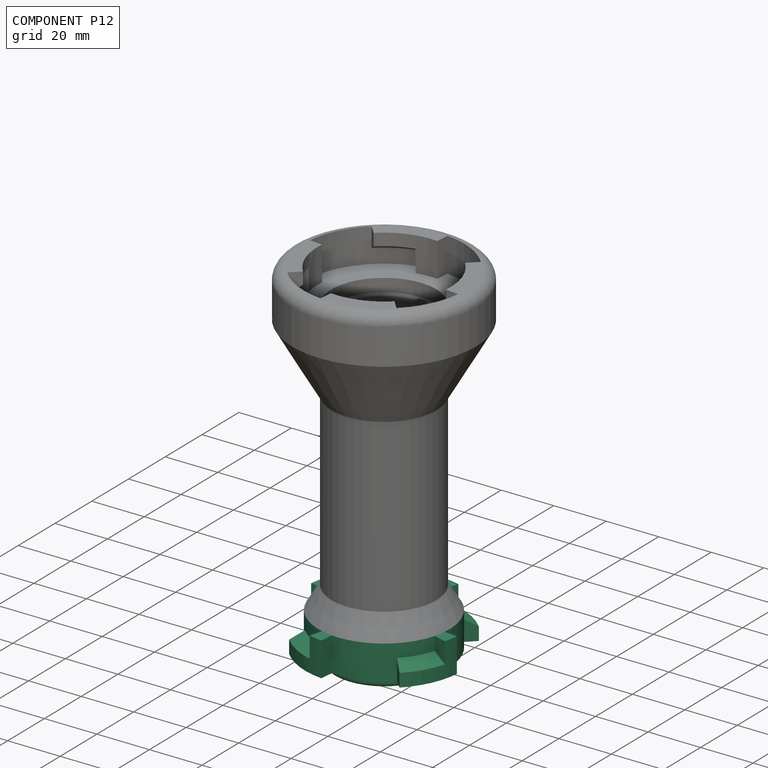
[diagram: component P12 — assembled]
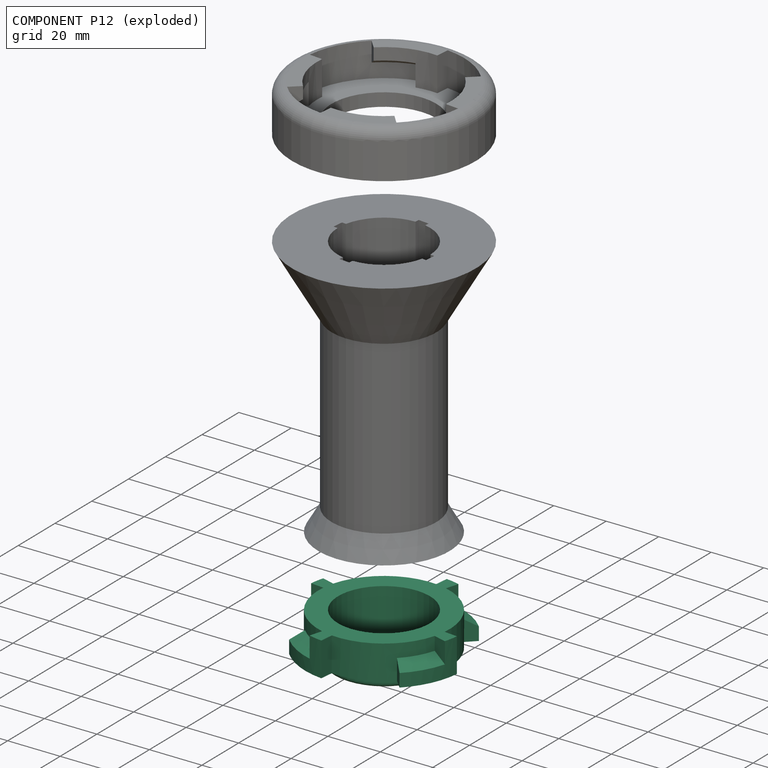
[diagram: component P12 — exploded]
COMPONENT P12 — recipe-attached (CADFS 00920899, mesh-verified: the recipe's output STEP matches this component's geometry to below the mesh-comparison resolution (tessellation chordal tolerance ~0.13 mm)).
Held by: FASTENED mate "Fastened 1" to P7; FASTENED mate "Fastened 1" to P7.
Construction recipe (FeatureScript — the CAD program that rebuilds this solid; sketch coordinates are in the units given by the * unit suffixes, e.g. mm):

FeatureScript 1511;
import(path : "onshape/std/geometry.fs", version : "1511.0");
import(path : "onshape/std/common.fs", version : "1511.0");
const mm = millimeter;
const VERTEX = EntityType.VERTEX;
const EDGE = EntityType.EDGE;
const FACE = EntityType.FACE;
const BODY = EntityType.BODY;
function v(x, y){return vector(x, y);}
function OD(order){return orderDisambiguation(order);}
function OSD(set){return originalSetDisambiguation(set);}
function TD(topology){return topologyDisambiguation(topology);}
function TDD(query){return trueDependencyDisambiguation(query);}
function sQuery(a, b, c) {return sketchEntityQuery(a, b, c);}

annotation { "Feature Type Name" : "Feature", "Feature Type Description" : "" }
export const myFeature = defineFeature(function(context is Context, id is Id, definition is map)
    precondition{}
    {
        {
            var Q0;
            Q0=qCreatedBy(makeId("Front.planeOp"),FACE);
            var sketch = newSketch(context, id + "F0", { "sketchPlane" : qUnion([Q0])});
            skLineSegment(sketch, "E0", {"start": v(17.5, 0) * mm, "end": v(19.5, 0) * mm});
            skLineSegment(sketch, "E1", {"start": v(19.5, 0) * mm, "end": v(19.5, 5) * mm});
            skLineSegment(sketch, "E2", {"start": v(19.5, 5) * mm, "end": v(30, 5) * mm});
            skLineSegment(sketch, "E3", {"start": v(30, 5) * mm, "end": v(30, 10) * mm});
            skLineSegment(sketch, "E4", {"start": v(30, 10) * mm, "end": v(25, 12.89) * mm});
            skLineSegment(sketch, "E5", {"start": v(25, 12.89) * mm, "end": v(25, 18) * mm});
            skLineSegment(sketch, "E6", {"start": v(25, 18) * mm, "end": v(17.5, 18) * mm});
            skLineSegment(sketch, "E7", {"start": v(17.5, 18) * mm, "end": v(17.5, 0) * mm});
            skSolve(sketch);
        }
        {
            var Q0;
            Q0=qCreatedBy(makeId("Front.planeOp"),FACE);
            var sketch = newSketch(context, id + "F1", { "sketchPlane" : qUnion([Q0])});
            skLineSegment(sketch, "E8", {"start": v(0, 0) * mm, "end": v(0, 36.68) * mm});
            skSolve(sketch);
        }
        {
            var Q0;
            Q0=makeQuery(id+"F0.imprint","IMPRINT",FACE,{"disambiguationData":[TD([[makeQuery(id+"F0.imprint","IMPRINT",EDGE,{"derivedFrom":sQuery(id+"F0.wireOp",EDGE,"E0")}),1.0]])]});
            var Q1;
            Q1=sQuery(id+"F1.wireOp",EDGE,"E8");
            revolve(context, id + "F2", {"surfaceOperationType" : NewSurfaceOperationType.NEW, "entities" : qUnion([Q0]), "axis" : qUnion([Q1]), "revolveType" : RevolveType.FULL});
        }
        {
            var Q0;
            Q0=qCreatedBy(makeId("Top.planeOp"),FACE);
            var sketch = newSketch(context, id + "F3", { "sketchPlane" : qUnion([Q0])});
            skArc(sketch, "E9", {"start": v(-4.34, -24.62) * mm, "mid": v(-2.18, -24.9) * mm, "end": v(0, -25) * mm});
            skArc(sketch, "E10", {"start": v(-5.2, -29.54) * mm, "mid": v(-2.61, -29.89) * mm, "end": v(0, -30) * mm});
            skLineSegment(sketch, "E11", {"start": v(0, -25) * mm, "end": v(0, -30) * mm});
            skLineSegment(sketch, "E12", {"start": v(-4.34, -24.62) * mm, "end": v(-5.2, -29.54) * mm});
            skArc(sketch, "E13.1.0", {"start": v(29.54, -5.2) * mm, "mid": v(29.89, -2.61) * mm, "end": v(30, 0) * mm});
            skLineSegment(sketch, "E13.1.1", {"start": v(25, 0) * mm, "end": v(30, 0) * mm});
            skLineSegment(sketch, "E13.1.2", {"start": v(24.62, -4.34) * mm, "end": v(29.54, -5.2) * mm});
            skArc(sketch, "E13.1.3", {"start": v(24.62, -4.34) * mm, "mid": v(24.9, -2.18) * mm, "end": v(25, 0) * mm});
            skArc(sketch, "E13.2.0", {"start": v(5.2, 29.54) * mm, "mid": v(2.61, 29.89) * mm, "end": v(0, 30) * mm});
            skLineSegment(sketch, "E13.2.1", {"start": v(0, 25) * mm, "end": v(0, 30) * mm});
            skLineSegment(sketch, "E13.2.2", {"start": v(4.34, 24.62) * mm, "end": v(5.2, 29.54) * mm});
            skArc(sketch, "E13.2.3", {"start": v(4.34, 24.62) * mm, "mid": v(2.18, 24.9) * mm, "end": v(0, 25) * mm});
            skArc(sketch, "E13.3.0", {"start": v(-29.54, 5.2) * mm, "mid": v(-29.89, 2.61) * mm, "end": v(-30, 0) * mm});
            skLineSegment(sketch, "E13.3.1", {"start": v(-25, 0) * mm, "end": v(-30, 0) * mm});
            skLineSegment(sketch, "E13.3.2", {"start": v(-24.62, 4.34) * mm, "end": v(-29.54, 5.2) * mm});
            skArc(sketch, "E13.3.3", {"start": v(-24.62, 4.34) * mm, "mid": v(-24.9, 2.18) * mm, "end": v(-25, 0) * mm});
            skSolve(sketch);
        }
        {
            var Q0;
            Q0 = qSketchRegion(id + "F3", true);
            var Q1;
            Q1=makeQuery(id+"F2.opRevolve","SWEPT_FACE",FACE,{"disambiguationData":[OSD([sQuery(id+"F0.wireOp",EDGE,"E6")])]});
            var Q2;
            Q2=makeQuery(id+"F2.opRevolve","SWEPT_FACE",FACE,{"disambiguationData":[OSD([sQuery(id+"F0.wireOp",EDGE,"E2")])]});
            extrude(context, id + "F4", {"entities" : qUnion([Q0]), "operationType" : NewBodyOperationType.ADD, "endBound" : BoundingType.UP_TO_SURFACE, "depth" : 25 * mm, "endBoundEntityFace" : qUnion([Q1]), "offsetDistance" : 25 * mm, "hasSecondDirection" : true, "secondDirectionBound" : SecondDirectionBoundingType.UP_TO_SURFACE, "secondDirectionOppositeDirection" : false, "secondDirectionDepth" : 25 * mm, "secondDirectionBoundEntityFace" : qUnion([Q2])});
        }
        {
            var Q0;
            Q0=qCreatedBy(makeId("Top.planeOp"),FACE);
            var sketch = newSketch(context, id + "F5", { "sketchPlane" : qUnion([Q0])});
            skArc(sketch, "E14", {"start": v(0, -30) * mm, "mid": v(12.68, -27.19) * mm, "end": v(22.98, -19.28) * mm});
            skArc(sketch, "E15", {"start": v(0, -25) * mm, "mid": v(10.57, -22.66) * mm, "end": v(19.15, -16.07) * mm});
            skLineSegment(sketch, "E16", {"start": v(0, -25) * mm, "end": v(0, -30) * mm});
            skLineSegment(sketch, "E17", {"start": v(19.15, -16.07) * mm, "end": v(22.98, -19.28) * mm});
            skLineSegment(sketch, "E18.1.0", {"start": v(16.07, 19.15) * mm, "end": v(19.28, 22.98) * mm});
            skArc(sketch, "E18.1.1", {"start": v(25, 0) * mm, "mid": v(22.66, 10.57) * mm, "end": v(16.07, 19.15) * mm});
            skLineSegment(sketch, "E18.1.2", {"start": v(25, 0) * mm, "end": v(30, 0) * mm});
            skArc(sketch, "E18.1.3", {"start": v(30, 0) * mm, "mid": v(27.19, 12.68) * mm, "end": v(19.28, 22.98) * mm});
            skLineSegment(sketch, "E18.2.0", {"start": v(-19.15, 16.07) * mm, "end": v(-22.98, 19.28) * mm});
            skArc(sketch, "E18.2.1", {"start": v(0, 25) * mm, "mid": v(-10.57, 22.66) * mm, "end": v(-19.15, 16.07) * mm});
            skLineSegment(sketch, "E18.2.2", {"start": v(0, 25) * mm, "end": v(0, 30) * mm});
            skArc(sketch, "E18.2.3", {"start": v(0, 30) * mm, "mid": v(-12.68, 27.19) * mm, "end": v(-22.98, 19.28) * mm});
            skLineSegment(sketch, "E18.3.0", {"start": v(-16.07, -19.15) * mm, "end": v(-19.28, -22.98) * mm});
            skArc(sketch, "E18.3.1", {"start": v(-25, 0) * mm, "mid": v(-22.66, -10.57) * mm, "end": v(-16.07, -19.15) * mm});
            skLineSegment(sketch, "E18.3.2", {"start": v(-25, 0) * mm, "end": v(-30, 0) * mm});
            skArc(sketch, "E18.3.3", {"start": v(-30, 0) * mm, "mid": v(-27.19, -12.68) * mm, "end": v(-19.28, -22.98) * mm});
            skSolve(sketch);
        }
        {
            var Q0;
            Q0 = qSketchRegion(id + "F5", true);
            var Q1;
            Q1=makeQuery(id+"F4.boolean.opBoolean","MERGE",FACE,{"derivedFrom":[makeQuery(id+"F2.opRevolve","SWEPT_FACE",FACE,{"disambiguationData":[OSD([sQuery(id+"F0.wireOp",EDGE,"E6")])]}),makeQuery(id+"F4.opExtrude","CAP_FACE",FACE,{"disambiguationData":[OSD([sQuery(id+"F3.wireOp",EDGE,"E9"),sQuery(id+"F3.wireOp",EDGE,"E10"),sQuery(id+"F3.wireOp",EDGE,"E11"),sQuery(id+"F3.wireOp",EDGE,"E12")])],"isStart":false}),makeQuery(id+"F4.opExtrude","CAP_FACE",FACE,{"disambiguationData":[OSD([sQuery(id+"F3.wireOp",EDGE,"E13.1.0"),sQuery(id+"F3.wireOp",EDGE,"E13.1.1"),sQuery(id+"F3.wireOp",EDGE,"E13.1.2"),sQuery(id+"F3.wireOp",EDGE,"E13.1.3")])],"isStart":false}),makeQuery(id+"F4.opExtrude","CAP_FACE",FACE,{"disambiguationData":[OSD([sQuery(id+"F3.wireOp",EDGE,"E13.2.0"),sQuery(id+"F3.wireOp",EDGE,"E13.2.1"),sQuery(id+"F3.wireOp",EDGE,"E13.2.2"),sQuery(id+"F3.wireOp",EDGE,"E13.2.3")])],"isStart":false}),makeQuery(id+"F4.opExtrude","CAP_FACE",FACE,{"disambiguationData":[OSD([sQuery(id+"F3.wireOp",EDGE,"E13.3.0"),sQuery(id+"F3.wireOp",EDGE,"E13.3.1"),sQuery(id+"F3.wireOp",EDGE,"E13.3.2"),sQuery(id+"F3.wireOp",EDGE,"E13.3.3")])],"isStart":false})]});
            var Q2;
            Q2=makeQuery(id+"F2.opRevolve","SWEPT_FACE",FACE,{"disambiguationData":[OSD([sQuery(id+"F0.wireOp",EDGE,"E2")])]});
            extrude(context, id + "F6", {"entities" : qUnion([Q0]), "operationType" : NewBodyOperationType.REMOVE, "endBound" : BoundingType.UP_TO_SURFACE, "depth" : 25 * mm, "endBoundEntityFace" : qUnion([Q1]), "offsetDistance" : 25 * mm, "hasSecondDirection" : true, "secondDirectionBound" : SecondDirectionBoundingType.UP_TO_SURFACE, "secondDirectionOppositeDirection" : false, "secondDirectionDepth" : 25 * mm, "secondDirectionBoundEntityFace" : qUnion([Q2])});
        }
        {
            var Q0;
            Q0=makeQuery(id+"F2.opRevolve","SWEPT_EDGE",EDGE,{"disambiguationData":[OSD([sQuery(id+"F0.wireOp",EDGE,"E0"),sQuery(id+"F0.wireOp",EDGE,"E1")])]});
            fillet(context, id + "F7", {"entities" : qUnion([Q0]), "radius" : 2 * mm, "tangentPropagation" : true, "allowEdgeOverflow" : false});
        }
    });
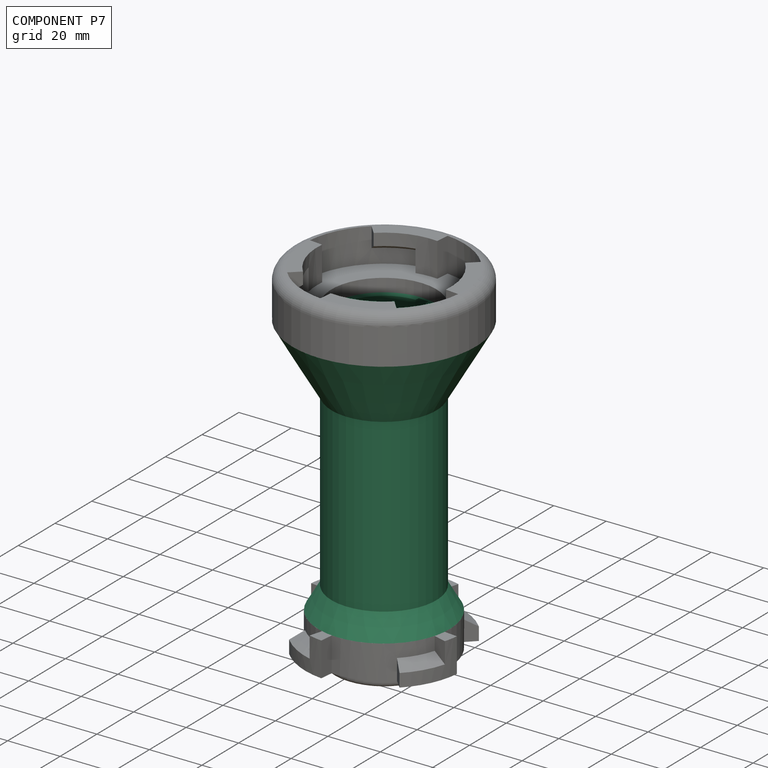
[diagram: component P7 — assembled]
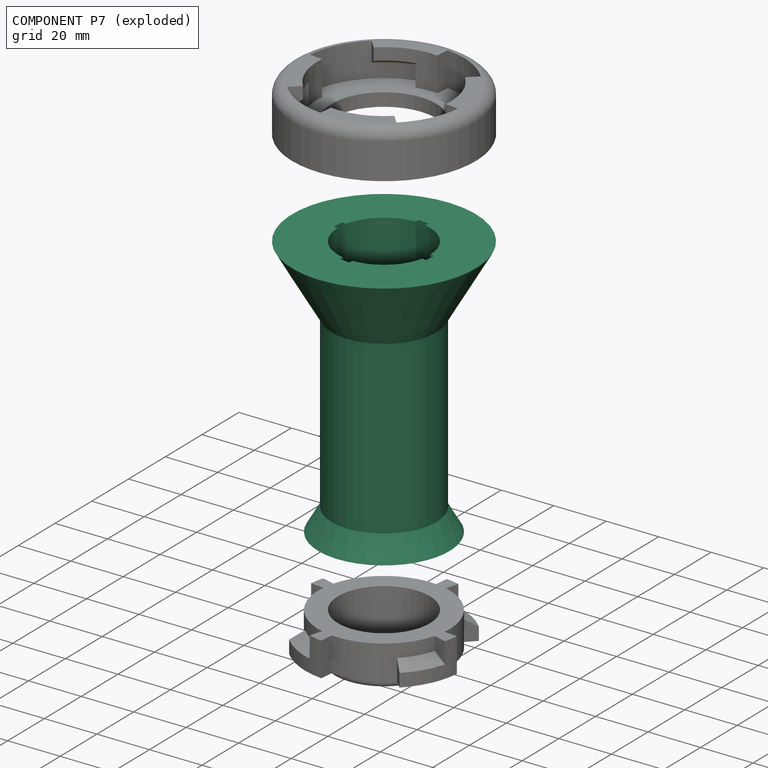
[diagram: component P7 — exploded]
COMPONENT P7 — recipe-attached (CADFS 00920901, mesh-verified: the recipe's output STEP matches this component's geometry to below the mesh-comparison resolution (tessellation chordal tolerance ~0.211 mm)).
Held by: FASTENED mate "Fastened 2" to P5; FASTENED mate "Fastened 1" to P12; FASTENED mate "Fastened 1" to P12; FASTENED mate "Fastened 2" to P5.
Construction recipe (FeatureScript — the CAD program that rebuilds this solid; sketch coordinates are in the units given by the * unit suffixes, e.g. mm):

FeatureScript 1511;
import(path : "onshape/std/geometry.fs", version : "1511.0");
import(path : "onshape/std/common.fs", version : "1511.0");
const mm = millimeter;
const VERTEX = EntityType.VERTEX;
const EDGE = EntityType.EDGE;
const FACE = EntityType.FACE;
const BODY = EntityType.BODY;
function v(x, y){return vector(x, y);}
function OD(order){return orderDisambiguation(order);}
function OSD(set){return originalSetDisambiguation(set);}
function TD(topology){return topologyDisambiguation(topology);}
function TDD(query){return trueDependencyDisambiguation(query);}
function sQuery(a, b, c) {return sketchEntityQuery(a, b, c);}

annotation { "Feature Type Name" : "Feature", "Feature Type Description" : "" }
export const myFeature = defineFeature(function(context is Context, id is Id, definition is map)
    precondition{}
    {
        {
            var Q0;
            Q0=qCreatedBy(makeId("Top.planeOp"),FACE);
            var sketch = newSketch(context, id + "F0", { "sketchPlane" : qUnion([Q0])});
            skCircle(sketch, "E0", {"center": v(0, 0) * mm, "radius": 20 * mm});
            skArc(sketch, "E1", {"start": v(17.39, 2) * mm, "mid": v(12.37, 12.37) * mm, "end": v(2, 17.39) * mm});
            skLineSegment(sketch, "E2.bottom", {"start": v(-19, 2) * mm, "end": v(-17.39, 2) * mm});
            skLineSegment(sketch, "E2.top", {"start": v(-19, -2) * mm, "end": v(-17.39, -2) * mm});
            skLineSegment(sketch, "E2.left", {"start": v(-19, 2) * mm, "end": v(-19, -2) * mm});
            skLineSegment(sketch, "E2.right", {"start": v(19, 2) * mm, "end": v(19, -2) * mm});
            skLineSegment(sketch, "E3", {"start": v(-27.64, 0) * mm, "end": v(39.71, 0) * mm, "construction": true});
            skLineSegment(sketch, "E4", {"start": v(0, -24.7) * mm, "end": v(0, 27.29) * mm, "construction": true});
            skArc(sketch, "E5.trimOffspring", {"start": v(-17.39, -2) * mm, "mid": v(-12.37, -12.37) * mm, "end": v(-2, -17.39) * mm});
            skLineSegment(sketch, "E6.trimOffspring", {"start": v(17.39, 2) * mm, "end": v(19, 2) * mm});
            skLineSegment(sketch, "E7.trimOffspring", {"start": v(17.39, -2) * mm, "end": v(19, -2) * mm});
            skLineSegment(sketch, "E8", {"start": v(-18.8, -18.8) * mm, "end": v(0, 0) * mm, "construction": true});
            skLineSegment(sketch, "E9", {"start": v(0, 0) * mm, "end": v(14.73, -14.73) * mm, "construction": true});
            skLineSegment(sketch, "E10.MirrorCS", {"start": v(2, -19) * mm, "end": v(2, -17.39) * mm});
            skLineSegment(sketch, "E11.MirrorCS", {"start": v(2, -19) * mm, "end": v(-2, -19) * mm});
            skLineSegment(sketch, "E12.MirrorCS", {"start": v(-2, -19) * mm, "end": v(-2, -17.39) * mm});
            skLineSegment(sketch, "E13.MirrorCS", {"start": v(-2, 17.39) * mm, "end": v(-2, 19) * mm});
            skLineSegment(sketch, "E14.MirrorCS", {"start": v(2, 17.39) * mm, "end": v(2, 19) * mm});
            skLineSegment(sketch, "E15.MirrorCS", {"start": v(2, 19) * mm, "end": v(-2, 19) * mm});
            skArc(sketch, "E16.trimOffspring", {"start": v(-2, 17.39) * mm, "mid": v(-12.37, 12.37) * mm, "end": v(-17.39, 2) * mm});
            skArc(sketch, "E17.trimOffspring", {"start": v(2, -17.39) * mm, "mid": v(12.37, -12.37) * mm, "end": v(17.39, -2) * mm});
            skSolve(sketch);
        }
        {
            var Q0;
            Q0 = qSketchRegion(id + "F0", true);
            extrude(context, id + "F1", {"entities" : qUnion([Q0]), "depth" : 100 * mm, "offsetDistance" : 25 * mm});
        }
        {
            var Q0;
            Q0=qCreatedBy(makeId("Front.planeOp"),FACE);
            var sketch = newSketch(context, id + "F2", { "sketchPlane" : qUnion([Q0])});
            skLineSegment(sketch, "E18", {"start": v(20, 100) * mm, "end": v(20, 74.02) * mm});
            skLineSegment(sketch, "E19", {"start": v(20, 74.02) * mm, "end": v(35, 100) * mm});
            skLineSegment(sketch, "E20", {"start": v(35, 100) * mm, "end": v(20, 100) * mm});
            skLineSegment(sketch, "E21", {"start": v(0, 0) * mm, "end": v(0, 110.34) * mm, "construction": true});
            skLineSegment(sketch, "E22", {"start": v(20, 8.66) * mm, "end": v(20, 0) * mm});
            skLineSegment(sketch, "E23", {"start": v(20, 0) * mm, "end": v(25, 0) * mm});
            skLineSegment(sketch, "E24", {"start": v(25, 0) * mm, "end": v(20, 8.66) * mm});
            skSolve(sketch);
        }
        {
            var Q0;
            Q0=qCreatedBy(makeId("Front.planeOp"),FACE);
            var sketch = newSketch(context, id + "F3", { "sketchPlane" : qUnion([Q0])});
            skLineSegment(sketch, "E25", {"start": v(0, 120.6) * mm, "end": v(0, 0) * mm});
            skSolve(sketch);
        }
        {
            var Q0;
            Q0=makeQuery(id+"F2.imprint","IMPRINT",FACE,{"disambiguationData":[TD([[makeQuery(id+"F2.imprint","IMPRINT",EDGE,{"derivedFrom":sQuery(id+"F2.wireOp",EDGE,"E18")}),1.0]])]});
            var Q1;
            Q1=makeQuery(id+"F2.imprint","IMPRINT",FACE,{"disambiguationData":[TD([[makeQuery(id+"F2.imprint","IMPRINT",EDGE,{"derivedFrom":sQuery(id+"F2.wireOp",EDGE,"E22")}),1.0]])]});
            var Q2;
            Q2=sQuery(id+"F3.wireOp",EDGE,"E25");
            revolve(context, id + "F4", {"operationType" : NewBodyOperationType.ADD, "surfaceOperationType" : NewSurfaceOperationType.NEW, "entities" : qUnion([Q0, Q1]), "axis" : qUnion([Q2]), "revolveType" : RevolveType.FULL});
        }
    });
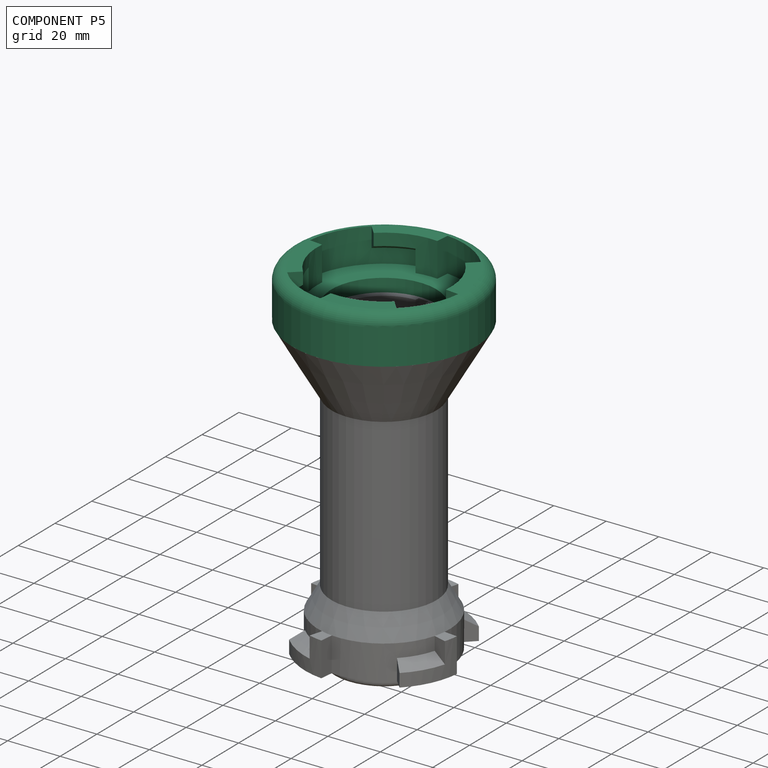
[diagram: component P5 — assembled]
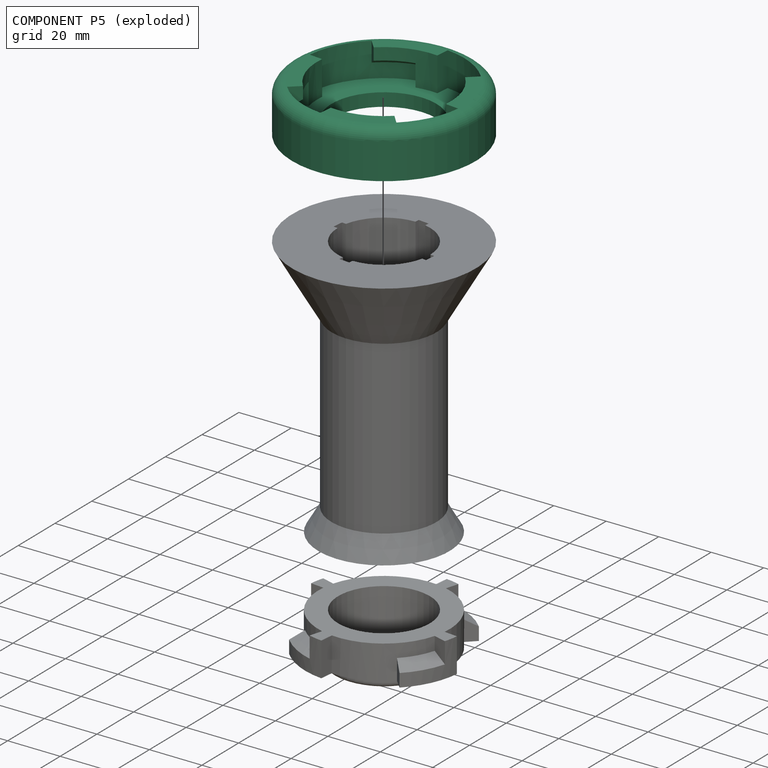
[diagram: component P5 — exploded]
COMPONENT P5 — recipe-attached (CADFS 00920902, mesh-verified: the recipe's output STEP matches this component's geometry to below the mesh-comparison resolution (tessellation chordal tolerance ~0.151 mm)).
Held by: FASTENED mate "Fastened 2" to P7; FASTENED mate "Fastened 2" to P7.
Construction recipe (FeatureScript — the CAD program that rebuilds this solid; sketch coordinates are in the units given by the * unit suffixes, e.g. mm):

FeatureScript 1511;
import(path : "onshape/std/geometry.fs", version : "1511.0");
import(path : "onshape/std/common.fs", version : "1511.0");
const mm = millimeter;
const VERTEX = EntityType.VERTEX;
const EDGE = EntityType.EDGE;
const FACE = EntityType.FACE;
const BODY = EntityType.BODY;
function v(x, y){return vector(x, y);}
function OD(order){return orderDisambiguation(order);}
function OSD(set){return originalSetDisambiguation(set);}
function TD(topology){return topologyDisambiguation(topology);}
function TDD(query){return trueDependencyDisambiguation(query);}
function sQuery(a, b, c) {return sketchEntityQuery(a, b, c);}

annotation { "Feature Type Name" : "Feature", "Feature Type Description" : "" }
export const myFeature = defineFeature(function(context is Context, id is Id, definition is map)
    precondition{}
    {
        {
            var Q0;
            Q0=qCreatedBy(makeId("Front.planeOp"),FACE);
            var sketch = newSketch(context, id + "F0", { "sketchPlane" : qUnion([Q0])});
            skLineSegment(sketch, "E0", {"start": v(17.5, 0) * mm, "end": v(17.5, 2) * mm});
            skLineSegment(sketch, "E1", {"start": v(17.5, 2) * mm, "end": v(20, 2) * mm});
            skLineSegment(sketch, "E2", {"start": v(20, 2) * mm, "end": v(20, 7) * mm});
            skLineSegment(sketch, "E3", {"start": v(20, 7) * mm, "end": v(30.5, 7) * mm});
            skLineSegment(sketch, "E4", {"start": v(30.5, 7) * mm, "end": v(30.5, 12.5) * mm});
            skLineSegment(sketch, "E5", {"start": v(30.5, 12.5) * mm, "end": v(25.5, 15.39) * mm});
            skLineSegment(sketch, "E6", {"start": v(25.5, 15.39) * mm, "end": v(25.5, 20) * mm});
            skLineSegment(sketch, "E7", {"start": v(25.5, 20) * mm, "end": v(35, 20) * mm});
            skLineSegment(sketch, "E8", {"start": v(35, 20) * mm, "end": v(35, 0) * mm});
            skLineSegment(sketch, "E9", {"start": v(35, 0) * mm, "end": v(17.5, 0) * mm});
            skSolve(sketch);
        }
        {
            var Q0;
            Q0=qCreatedBy(makeId("Front.planeOp"),FACE);
            var sketch = newSketch(context, id + "F1", { "sketchPlane" : qUnion([Q0])});
            skLineSegment(sketch, "E10", {"start": v(0, 47.14) * mm, "end": v(0, -19.48) * mm});
            skSolve(sketch);
        }
        {
            var Q0;
            Q0=makeQuery(id+"F0.imprint","IMPRINT",FACE,{"disambiguationData":[TD([[makeQuery(id+"F0.imprint","IMPRINT",EDGE,{"derivedFrom":sQuery(id+"F0.wireOp",EDGE,"E0")}),-1.0]])]});
            var Q1;
            Q1=sQuery(id+"F1.wireOp",EDGE,"E10");
            revolve(context, id + "F2", {"surfaceOperationType" : NewSurfaceOperationType.NEW, "entities" : qUnion([Q0]), "axis" : qUnion([Q1]), "revolveType" : RevolveType.FULL});
        }
        {
            var Q0;
            Q0=qCreatedBy(makeId("Top.planeOp"),FACE);
            var sketch = newSketch(context, id + "F3", { "sketchPlane" : qUnion([Q0])});
            skLineSegment(sketch, "E11", {"start": v(25.5, 0) * mm, "end": v(35, 0) * mm});
            skLineSegment(sketch, "E12", {"start": v(24.25, 7.88) * mm, "end": v(33.29, 10.82) * mm});
            skArc(sketch, "E13", {"start": v(25.5, 0) * mm, "mid": v(25.19, 3.99) * mm, "end": v(24.25, 7.88) * mm});
            skArc(sketch, "E14", {"start": v(35, 0) * mm, "mid": v(34.57, 5.48) * mm, "end": v(33.29, 10.82) * mm});
            skArc(sketch, "E15.1.0", {"start": v(0, 35) * mm, "mid": v(-5.48, 34.57) * mm, "end": v(-10.82, 33.29) * mm});
            skArc(sketch, "E15.1.1", {"start": v(0, 25.5) * mm, "mid": v(-3.99, 25.19) * mm, "end": v(-7.88, 24.25) * mm});
            skLineSegment(sketch, "E15.1.2", {"start": v(-7.88, 24.25) * mm, "end": v(-10.82, 33.29) * mm});
            skLineSegment(sketch, "E15.1.3", {"start": v(0, 25.5) * mm, "end": v(0, 35) * mm});
            skArc(sketch, "E15.2.0", {"start": v(-35, 0) * mm, "mid": v(-34.57, -5.48) * mm, "end": v(-33.29, -10.82) * mm});
            skArc(sketch, "E15.2.1", {"start": v(-25.5, 0) * mm, "mid": v(-25.19, -3.99) * mm, "end": v(-24.25, -7.88) * mm});
            skLineSegment(sketch, "E15.2.2", {"start": v(-24.25, -7.88) * mm, "end": v(-33.29, -10.82) * mm});
            skLineSegment(sketch, "E15.2.3", {"start": v(-25.5, 0) * mm, "end": v(-35, 0) * mm});
            skArc(sketch, "E15.3.0", {"start": v(0, -35) * mm, "mid": v(5.48, -34.57) * mm, "end": v(10.82, -33.29) * mm});
            skArc(sketch, "E15.3.1", {"start": v(0, -25.5) * mm, "mid": v(3.99, -25.19) * mm, "end": v(7.88, -24.25) * mm});
            skLineSegment(sketch, "E15.3.2", {"start": v(7.88, -24.25) * mm, "end": v(10.82, -33.29) * mm});
            skLineSegment(sketch, "E15.3.3", {"start": v(0, -25.5) * mm, "end": v(0, -35) * mm});
            skSolve(sketch);
        }
        {
            var Q0;
            Q0 = qSketchRegion(id + "F3", true);
            var Q1;
            Q1=makeQuery(id+"F2.opRevolve","SWEPT_FACE",FACE,{"disambiguationData":[OSD([sQuery(id+"F0.wireOp",EDGE,"E7")])]});
            extrude(context, id + "F4", {"entities" : qUnion([Q0]), "operationType" : NewBodyOperationType.ADD, "endBound" : BoundingType.UP_TO_SURFACE, "depth" : 25 * mm, "endBoundEntityFace" : qUnion([Q1]), "offsetDistance" : 25 * mm});
        }
        {
            var Q0;
            Q0=qCreatedBy(makeId("Top.planeOp"),FACE);
            var sketch = newSketch(context, id + "F5", { "sketchPlane" : qUnion([Q0])});
            skLineSegment(sketch, "E16", {"start": v(0, 25.5) * mm, "end": v(0, 30.5) * mm});
            skLineSegment(sketch, "E17", {"start": v(17.06, 18.95) * mm, "end": v(20.4, 22.67) * mm});
            skArc(sketch, "E18", {"start": v(17.06, 18.95) * mm, "mid": v(9.14, 23.8) * mm, "end": v(0, 25.5) * mm});
            skArc(sketch, "E19", {"start": v(20.4, 22.67) * mm, "mid": v(10.93, 28.47) * mm, "end": v(0, 30.5) * mm});
            skArc(sketch, "E20.1.0", {"start": v(-18.95, 17.06) * mm, "mid": v(-23.8, 9.14) * mm, "end": v(-25.5, 0) * mm});
            skArc(sketch, "E20.1.1", {"start": v(-22.67, 20.4) * mm, "mid": v(-28.47, 10.93) * mm, "end": v(-30.5, 0) * mm});
            skLineSegment(sketch, "E20.1.2", {"start": v(-18.95, 17.06) * mm, "end": v(-22.67, 20.4) * mm});
            skLineSegment(sketch, "E20.1.3", {"start": v(-25.5, 0) * mm, "end": v(-30.5, 0) * mm});
            skArc(sketch, "E20.2.0", {"start": v(-17.06, -18.95) * mm, "mid": v(-9.14, -23.8) * mm, "end": v(0, -25.5) * mm});
            skArc(sketch, "E20.2.1", {"start": v(-20.4, -22.67) * mm, "mid": v(-10.93, -28.47) * mm, "end": v(0, -30.5) * mm});
            skLineSegment(sketch, "E20.2.2", {"start": v(-17.06, -18.95) * mm, "end": v(-20.4, -22.67) * mm});
            skLineSegment(sketch, "E20.2.3", {"start": v(0, -25.5) * mm, "end": v(0, -30.5) * mm});
            skArc(sketch, "E20.3.0", {"start": v(18.95, -17.06) * mm, "mid": v(23.8, -9.14) * mm, "end": v(25.5, 0) * mm});
            skArc(sketch, "E20.3.1", {"start": v(22.67, -20.4) * mm, "mid": v(28.47, -10.93) * mm, "end": v(30.5, 0) * mm});
            skLineSegment(sketch, "E20.3.2", {"start": v(18.95, -17.06) * mm, "end": v(22.67, -20.4) * mm});
            skLineSegment(sketch, "E20.3.3", {"start": v(25.5, 0) * mm, "end": v(30.5, 0) * mm});
            skSolve(sketch);
        }
        {
            var Q0;
            Q0 = qSketchRegion(id + "F5", true);
            var Q1;
            Q1=makeQuery(id+"F2.opRevolve","SWEPT_FACE",FACE,{"disambiguationData":[OSD([sQuery(id+"F0.wireOp",EDGE,"E7")])]});
            var Q2;
            Q2=makeQuery(id+"F2.opRevolve","SWEPT_FACE",FACE,{"disambiguationData":[OSD([sQuery(id+"F0.wireOp",EDGE,"E3")])]});
            extrude(context, id + "F6", {"entities" : qUnion([Q0]), "operationType" : NewBodyOperationType.REMOVE, "endBound" : BoundingType.UP_TO_SURFACE, "depth" : 25 * mm, "endBoundEntityFace" : qUnion([Q1]), "offsetDistance" : 25 * mm, "hasSecondDirection" : true, "secondDirectionBound" : SecondDirectionBoundingType.UP_TO_SURFACE, "secondDirectionOppositeDirection" : false, "secondDirectionDepth" : 25 * mm, "secondDirectionBoundEntityFace" : qUnion([Q2])});
        }
        {
            var Q0;
            Q0=makeQuery(id+"F2.opRevolve","SWEPT_FACE",FACE,{"disambiguationData":[OSD([sQuery(id+"F0.wireOp",EDGE,"E9")])]});
            var sketch = newSketch(context, id + "F7", { "sketchPlane" : qUnion([Q0])});
            skCircle(sketch, "E21", {"center": v(0, 0) * mm, "radius": 35 * mm});
            skSolve(sketch);
        }
        {
            var Q0;
            Q0 = qSketchRegion(id + "F7", true);
            extrude(context, id + "F8", {"entities" : qUnion([Q0]), "operationType" : NewBodyOperationType.REMOVE, "oppositeDirection" : true, "depth" : 2 * mm, "offsetDistance" : 25 * mm});
        }
        {
            var Q0;
            Q0=makeQuery(id+"F2.opRevolve","SWEPT_EDGE",EDGE,{"disambiguationData":[OSD([sQuery(id+"F0.wireOp",EDGE,"E7"),sQuery(id+"F0.wireOp",EDGE,"E8")])]});
            fillet(context, id + "F9", {"entities" : qUnion([Q0]), "radius" : 4.5 * mm, "tangentPropagation" : true, "allowEdgeOverflow" : false});
        }
    });
